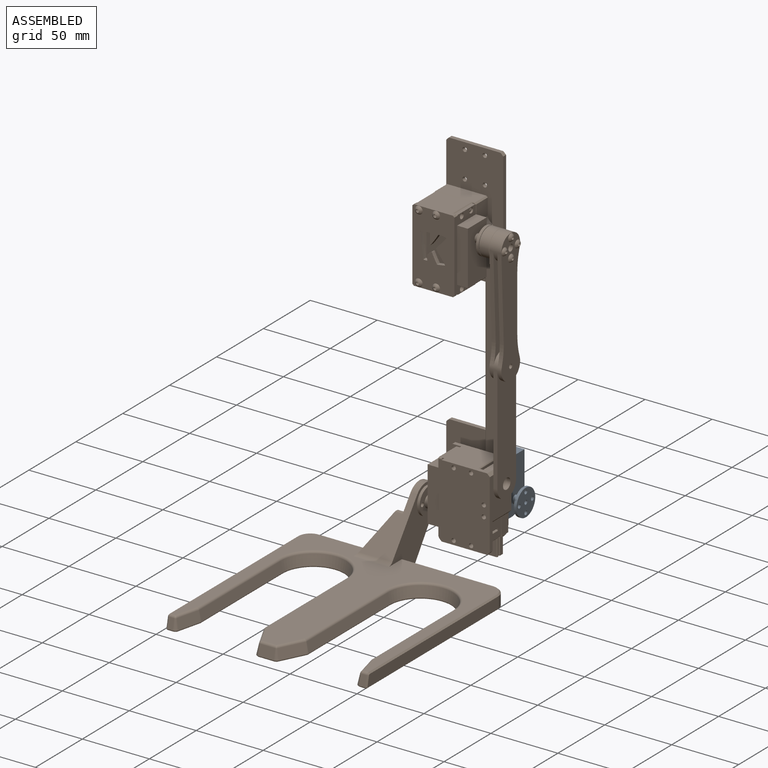
[diagram: assembled view]
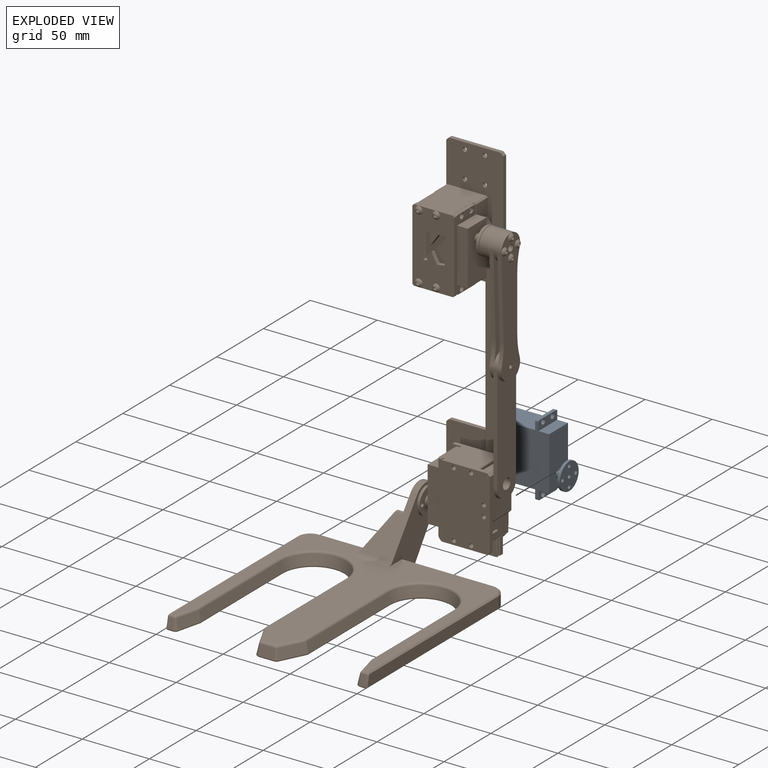
[diagram: exploded view]
FCSTD DOCUMENT  (FreeCAD 2024.113R14555 (Git shallow))
Label: acsenseur
License: Creative Commons Attribution-NoDerivatives
LicenseURL: http://creativecommons.org/licenses/by-nd/4.0/
objects: Sketcher::SketchObject×29, PartDesign::Chamfer×22, PartDesign::Pad×20, PartDesign::Body×17, PartDesign::Fillet×13, App::Part×10, TechDraw::DrawProjGroupItem×9, TechDraw::DrawProjGroup×9, Part::FeaturePython×8, App::Link×7, PartDesign::Pocket×6, Part::Feature×4, App::DocumentObjectGroup×3, TechDraw::DrawSVGTemplate×2, TechDraw::DrawPage×2, PartDesign::Hole×1, Spreadsheet::Sheet×1, Part::Part2DObjectPython×1, PartDesign::SubShapeBinder×1, PartDesign::Plane×1, +2 more types
note: 282 computed .brp shape members not serialized (recipe doc carries the construction recipe); baked Part::Feature solids carry a one-line shape summary decoded from their .brp
EXTERNAL_REF file=../table_2022.FCStd obj=Link005

FEATURE [Part::Feature] Solid  label="Slider"
  FixShape = 1
  InvalidShape = false
  TreeRank = 0
  ValidateShape = false
  shape: bbox 20 x 30.26 x 8.004 mm, 352 faces (baked)
FEATURE [App::Link] Link070  label="Link070(BlocServo90°)"
  AutoLinkLabel = true
  AutoPlacement = true
  LinkPlacement = pos=(-1.90735e-06,49,13.5) rot=(0,0,1;0rad)
  LinkedObject = -> Body039
  Placement = pos=(-1.90735e-06,49,13.5) rot=(0,0,1;0rad)
  SyncGroupVisibility = false
  TreeRank = 0
  _LinkVersion = 1
FEATURE [Sketcher::SketchObject] Sketch081
  ArcFitTolerance = 0
  AttachmentSupport = -> [XY_Plane046]
  ExternalBSplineMaxDegree = 0
  ExternalBSplineTolerance = 0
  FixShape = 1
  FullyConstrained = true
  InternalTolerance = 1e-06
  InvalidShape = false
  MakeInternals = false
  MapMode = 5
  Support = -> [XY_Plane046]
  TreeRank = 0
  ValidateShape = false
  sketch-geometry (29):
    g0: Circle CenterX=-7.5 CenterY=19.5 CenterZ=0 NormalX=0 NormalY=0 NormalZ=1 AngleXU=0 Radius=1.6
    g1: Circle CenterX=7.5 CenterY=19.5 CenterZ=0 NormalX=0 NormalY=0 NormalZ=1 AngleXU=0 Radius=1.6
    g2: Circle CenterX=7.5 CenterY=9.5 CenterZ=0 NormalX=0 NormalY=0 NormalZ=1 AngleXU=0 Radius=1.6
    g3: Circle CenterX=-7.5 CenterY=9.5 CenterZ=0 NormalX=0 NormalY=0 NormalZ=1 AngleXU=0 Radius=1.6
    g4: LineSegment [constr] StartX=-7.5 StartY=19.5 StartZ=0 EndX=7.5 EndY=19.5 EndZ=0
    g5: LineSegment [constr] StartX=7.5 StartY=19.5 StartZ=0 EndX=7.5 EndY=9.5 EndZ=0
    g6: LineSegment [constr] StartX=7.5 StartY=9.5 StartZ=0 EndX=-7.5 EndY=9.5 EndZ=0
    g7: LineSegment [constr] StartX=-7.5 StartY=9.5 StartZ=0 EndX=-7.5 EndY=19.5 EndZ=0
    g8: LineSegment StartX=10 StartY=55 StartZ=0 EndX=-25 EndY=55 EndZ=0
    g9: LineSegment [constr] StartX=-25 StartY=55 StartZ=0 EndX=-25 EndY=0 EndZ=0
    g10: LineSegment [constr] StartX=-25 StartY=0 StartZ=0 EndX=10 EndY=0 EndZ=0
    g11: LineSegment StartX=10 StartY=0 StartZ=0 EndX=10 EndY=55 EndZ=0
    g12: Circle CenterX=-7 CenterY=52 CenterZ=0 NormalX=0 NormalY=0 NormalZ=1 AngleXU=0 Radius=1.6
    g13: Circle CenterX=6 CenterY=52 CenterZ=0 NormalX=0 NormalY=0 NormalZ=1 AngleXU=0 Radius=1.6
    g14: Circle CenterX=-7 CenterY=3 CenterZ=0 NormalX=0 NormalY=0 NormalZ=1 AngleXU=0 Radius=1.6
    g15: Circle CenterX=6 CenterY=3 CenterZ=0 NormalX=0 NormalY=0 NormalZ=1 AngleXU=0 Radius=1.6
    g16: LineSegment [constr] StartX=-7 StartY=52 StartZ=0 EndX=6 EndY=52 EndZ=0
    g17: LineSegment [constr] StartX=6 StartY=52 StartZ=0 EndX=6 EndY=3 EndZ=0
    g18: LineSegment [constr] StartX=6 StartY=3 StartZ=0 EndX=-7 EndY=3 EndZ=0
    g19: LineSegment [constr] StartX=-7 StartY=3 StartZ=0 EndX=-7 EndY=52 EndZ=0
    g20: LineSegment [constr] StartX=-25 StartY=27.5 StartZ=0 EndX=10 EndY=27.5 EndZ=0
    g21: LineSegment [constr] StartX=-18 StartY=55 StartZ=0 EndX=-18 EndY=0 EndZ=0
    g22: LineSegment StartX=-25 StartY=55 StartZ=0 EndX=-25 EndY=17.4686 EndZ=0
    g23: LineSegment StartX=-25 StartY=17.4686 StartZ=0 EndX=-11 EndY=15 EndZ=0
    g24: LineSegment StartX=-11 StartY=15 StartZ=0 EndX=-11 EndY=0 EndZ=0
    g25: LineSegment StartX=-11 StartY=0 StartZ=0 EndX=10 EndY=0 EndZ=0
    g26: Circle [constr] CenterX=-13.75 CenterY=19.5 CenterZ=0 NormalX=0 NormalY=0 NormalZ=1 AngleXU=0 Radius=2.55
    g27: LineSegment [constr] StartX=-16.3 StartY=19.5 StartZ=0 EndX=-11.2 EndY=19.5 EndZ=0
    g28: Circle CenterX=-13.75 CenterY=19.5 CenterZ=0 NormalX=0 NormalY=0 NormalZ=1 AngleXU=0 Radius=1.6
  constraints (77):
    c: Coincident(g4,g5)
    c: Coincident(g5,g6)
    c: Coincident(g6,g7)
    c: Coincident(g7,g4)
    c: Horizontal(g6)
    c: Vertical(g5)
    c: Vertical(g7)
    c: Coincident(g4,g0)
    c: Coincident(g5,g2)
    c: Coincident(g1,g4)
    c: Coincident(g3,g6)
    c: Equal(g2,g1)
    c: Equal(g1,g0)
    c: Equal(g0,g3)
    c: Diameter(g1) = 3.2
    c: Symmetric(g1,g0,g-2)
    c: DistanceX(g4,g4) = 15
    c: DistanceY(g5,g5) = 10
    c: DistanceY(g2) = 9.5
    c: Coincident(g8,g9)
    c: Coincident(g9,g10)
    c: Coincident(g10,g11)
    c: Coincident(g11,g8)
    c: Horizontal(g8)
    c: Horizontal(g10)
    c: Vertical(g9)
    c: Vertical(g11)
    c: DistanceX(g10) = 10
    c: PointOnObject(g9,g-1)
    c: DistanceX(g10,g10) = 35
    c: DistanceY(g11,g11) = 55
    c: Equal(g15,g14)
    c: Equal(g14,g12)
    c: Equal(g12,g13)
    c: Coincident(g16,g17)
    c: Coincident(g17,g18)
    c: Coincident(g18,g19)
    c: Coincident(g19,g16)
    c: Horizontal(g16)
    c: Horizontal(g18)
    c: Vertical(g17)
    c: Vertical(g19)
    c: Coincident(g16,g12)
    c: Coincident(g17,g15)
    c: Coincident(g16,g13)
    c: Coincident(g18,g14)
    c: Diameter(g13) = 3.2
    c: DistanceY(g17,g17) = 49
    c: PointOnObject(g20,g11)
    c: Symmetric(g9,g8,g20)
    c: Symmetric(g14,g12,g20)
    c: DistanceX(g18,g18) = 13
    c: DistanceX(g15,g10) = 4
    c: PointOnObject(g21,g8)
    c: PointOnObject(g21,g10)
    c: Vertical(g21)
    c: DistanceX(g21,g8) = 28
    c: Coincident(g8,g22)
    c: PointOnObject(g22,g9)
    c: Coincident(g22,g23)
    c: Coincident(g23,g24)
    c: PointOnObject(g24,g10)
    c: Vertical(g24)
    c: Coincident(g25,g24)
    c: Coincident(g25,g11)
    c: DistanceX(g25,g25) = 21
    c: Angle(g23,g24) = 1.74533
    c: DistanceY(g24,g24) = 15
    c: PointOnObject(g27,g26)
    c: PointOnObject(g27,g26)
    c: Horizontal(g27)
    c: PointOnObject(g26,g27)
    c: DistanceX(g27) = -11.2
    c: Diameter(g26) = 5.1
    c: Coincident(g28,g26)
    c: Diameter(g28) = 3.2
    c: Horizontal(g28,g0)
FEATURE [PartDesign::Pad] Pad046
  AddSubType = 0
  AutoTaperInnerAngle = false
  CheckUpToFaceLimits = true
  ClaimChildren = false
  Direction = (1,1,1)
  Fit = 0
  FitJoin = 0
  FixShape = 1
  InnerFit = 0
  InnerFitJoin = 0
  InvalidShape = false
  Length = 3
  Length2 = 100
  Linearize = true
  NewSolid = false
  Profile = -> Sketch081
  Refine = true
  Suppress = false
  TaperInnerAngle = 0
  TaperInnerAngleRev = 0
  TreeRank = 0
  Type = 0
  ValidateShape = true
  _ProfileBasedVersion = 1
FEATURE [PartDesign::Chamfer] Chamfer026
  AddSubType = 0
  Angle = 45
  Base = -> Pad046 [Edge14,Edge1,Edge2]
  BaseFeature = -> Pad046
  ChamferType = 0
  FixShape = 1
  FlipDirection = false
  InvalidShape = false
  NewSolid = false
  Refine = true
  Size = 1
  Size2 = 1
  SupportTransform = false
  Suppress = false
  TreeRank = 0
  UseAllEdges = false
  ValidateShape = true
FEATURE [PartDesign::Fillet] Fillet021
  AddSubType = 0
  Base = -> Chamfer026 [Edge42,Edge44,Edge45]
  BaseFeature = -> Chamfer026
  FixShape = 1
  InvalidShape = false
  NewSolid = false
  Radius = 3
  Refine = true
  SupportTransform = false
  Suppress = false
  TreeRank = 0
  UseAllEdges = false
  ValidateShape = true
FEATURE [PartDesign::Body] Body038  label="PlatineSlider"
  AutoGroupSolids = false
  ClaimAllChildren = false
  ExportMode = 0
  FixShape = 1
  Group = -> [Sketch081,Pad046,Chamfer026,Fillet021]
  InvalidShape = false
  Origin = -> Origin058
  Placement = pos=(-1.90735e-06,-1.52588e-05,10.5) rot=(0,0,1;0rad)
  SingleSolid = true
  Tip = -> Fillet021
  TreeRank = 0
  ValidateShape = false
  _ExportChildren = -> [Pad046,Chamfer026,Fillet021]
  _GroupVersion = 1
FEATURE [Sketcher::SketchObject] Sketch082
  ArcFitTolerance = 0
  AttachmentSupport = -> [XY_Plane047]
  ExternalBSplineMaxDegree = 0
  ExternalBSplineTolerance = 0
  FixShape = 1
  FullyConstrained = true
  InternalTolerance = 1e-06
  InvalidShape = false
  MakeInternals = false
  MapMode = 5
  Support = -> [XY_Plane047]
  TreeRank = 0
  ValidateShape = false
  sketch-geometry (6):
    g0: LineSegment StartX=10 StartY=0 StartZ=0 EndX=-18 EndY=0 EndZ=0
    g1: LineSegment StartX=-18 StartY=0 StartZ=0 EndX=-18 EndY=6 EndZ=0
    g2: LineSegment StartX=-18 StartY=6 StartZ=0 EndX=10 EndY=6 EndZ=0
    g3: LineSegment StartX=10 StartY=6 StartZ=0 EndX=10 EndY=0 EndZ=0
    g4: Circle CenterX=-7 CenterY=3 CenterZ=0 NormalX=0 NormalY=0 NormalZ=1 AngleXU=0 Radius=2.05
    g5: Circle CenterX=6 CenterY=3 CenterZ=0 NormalX=0 NormalY=0 NormalZ=1 AngleXU=0 Radius=2.05
  constraints (18):
    c: Coincident(g0,g1)
    c: Coincident(g1,g2)
    c: Coincident(g2,g3)
    c: Coincident(g3,g0)
    c: Horizontal(g0)
    c: Horizontal(g2)
    c: Vertical(g1)
    c: Vertical(g3)
    c: PointOnObject(g0,g-1)
    c: Diameter(g4) = 4.1
    c: Equal(g4,g5)
    c: Horizontal(g4,g5)
    c: DistanceY(g4) = 3
    c: DistanceX(g4) = -7
    c: DistanceX(g5) = 6
    c: DistanceX(g2) = 10
    c: DistanceX(g0,g0) = 28
    c: DistanceY(g4,g1) = 3
FEATURE [PartDesign::Pad] Pad047
  AddSubType = 0
  AutoTaperInnerAngle = false
  CheckUpToFaceLimits = true
  ClaimChildren = false
  Direction = (1,1,1)
  Fit = 0
  FitJoin = 0
  FixShape = 1
  InnerFit = 0
  InnerFitJoin = 0
  InvalidShape = false
  Length = 20
  Length2 = 100
  Linearize = true
  NewSolid = false
  Profile = -> Sketch082
  Refine = true
  Suppress = false
  TaperInnerAngle = 0
  TaperInnerAngleRev = 0
  TreeRank = 0
  Type = 0
  ValidateShape = true
  _ProfileBasedVersion = 1
FEATURE [Sketcher::SketchObject] Sketch083
  ArcFitTolerance = 0
  AttachmentSupport = -> [Pad047]
  ExternalBSplineMaxDegree = 0
  ExternalBSplineTolerance = 0
  FixShape = 1
  FullyConstrained = true
  InternalTolerance = 1e-06
  InvalidShape = false
  MakeInternals = false
  MapMode = 5
  Placement = pos=(-18,0,0) rot=(0.57735,-0.57735,-0.57735;2.0944rad)
  Support = -> [Pad047]
  TreeRank = 0
  ValidateShape = false
  sketch-geometry (1):
    g0: Circle CenterX=-3 CenterY=15 CenterZ=0 NormalX=0 NormalY=0 NormalZ=1 AngleXU=0 Radius=2.05
  constraints (3):
    c: DistanceX(g0) = -3
    c: Diameter(g0) = 4.1
    c: DistanceY(g0) = 15
FEATURE [PartDesign::Pocket] Pocket032
  AddSubType = 1
  AutoTaperInnerAngle = false
  BaseFeature = -> Pad047
  CheckUpToFaceLimits = true
  ClaimChildren = false
  Direction = (1,1,1)
  Fit = 0
  FitJoin = 0
  FixShape = 1
  InnerFit = 0
  InnerFitJoin = 0
  InvalidShape = false
  Length = 7
  Length2 = 100
  Linearize = true
  NewSolid = false
  Profile = -> Sketch083
  Refine = true
  Suppress = false
  TaperInnerAngle = 0
  TaperInnerAngleRev = 0
  TreeRank = 0
  Type = 0
  ValidateShape = true
  _ProfileBasedVersion = 1
  _Version = 1
FEATURE [Sketcher::SketchObject] Sketch084
  ArcFitTolerance = 0
  AttachmentSupport = -> [Pocket032]
  ExternalBSplineMaxDegree = 0
  ExternalBSplineTolerance = 0
  ExternalGeometry = -> [Pocket032]
  FixShape = 1
  FullyConstrained = true
  InternalTolerance = 1e-06
  InvalidShape = false
  MakeInternals = false
  MapMode = 5
  Placement = pos=(-18,0,0) rot=(0.57735,-0.57735,-0.57735;2.0944rad)
  Support = -> [Pocket032]
  TreeRank = 0
  ValidateShape = false
  sketch-geometry (1):
    g0: Circle CenterX=-3 CenterY=5 CenterZ=0 NormalX=0 NormalY=0 NormalZ=1 AngleXU=0 Radius=2
  constraints (3):
    c: Vertical(g0,g-3)
    c: DistanceY(g0,g-3) = 10
    c: Diameter(g0) = 4
FEATURE [PartDesign::Pad] Pad048
  AddSubType = 0
  AutoTaperInnerAngle = false
  BaseFeature = -> Pocket032
  CheckUpToFaceLimits = true
  ClaimChildren = false
  Direction = (1,1,1)
  Fit = 0
  FitJoin = 0
  FixShape = 1
  InnerFit = 0
  InnerFitJoin = 0
  InvalidShape = false
  Length = 2
  Length2 = 100
  Linearize = true
  NewSolid = false
  Profile = -> Sketch084
  Refine = true
  Suppress = false
  TaperInnerAngle = 0
  TaperInnerAngleRev = 0
  TreeRank = 0
  Type = 0
  ValidateShape = true
  _ProfileBasedVersion = 1
FEATURE [PartDesign::Fillet] Fillet022
  AddSubType = 0
  Base = -> Pad048 [Edge22]
  BaseFeature = -> Pad048
  FixShape = 1
  InvalidShape = false
  NewSolid = false
  Radius = 1.99
  Refine = true
  SupportTransform = false
  Suppress = false
  TreeRank = 0
  UseAllEdges = false
  ValidateShape = true
FEATURE [PartDesign::Chamfer] Chamfer027
  AddSubType = 0
  Angle = 45
  Base = -> Fillet022 [Edge11,Edge22,Edge6,Edge9]
  BaseFeature = -> Fillet022
  ChamferType = 0
  FixShape = 1
  FlipDirection = false
  InvalidShape = false
  NewSolid = false
  Refine = true
  Size = 0.6
  Size2 = 1
  SupportTransform = false
  Suppress = false
  TreeRank = 0
  UseAllEdges = false
  ValidateShape = true
FEATURE [PartDesign::Chamfer] Chamfer028
  AddSubType = 0
  Angle = 45
  Base = -> Chamfer027 [Edge26,Edge25,Edge15,Edge14,Edge5]
  BaseFeature = -> Chamfer027
  ChamferType = 0
  FixShape = 1
  FlipDirection = false
  InvalidShape = false
  NewSolid = false
  Refine = true
  Size = 0.2
  Size2 = 1
  SupportTransform = false
  Suppress = false
  TreeRank = 0
  UseAllEdges = false
  ValidateShape = true
FEATURE [PartDesign::Body] Body039  label="BlocServo90°"
  AutoGroupSolids = false
  ClaimAllChildren = false
  ExportMode = 0
  FixShape = 1
  Group = -> [Sketch082,Pad047,Sketch083,Pocket032,Sketch084,Pad048,Fillet022,Chamfer027,Chamfer028]
  InvalidShape = false
  Origin = -> Origin059
  Placement = pos=(-1.90735e-06,0,13.5) rot=(0,0,1;0rad)
  SingleSolid = true
  Tip = -> Chamfer028
  TreeRank = 0
  ValidateShape = false
  _ExportChildren = -> [Pad047,Pocket032,Pad048,Fillet022,Chamfer027,Chamfer028]
  _GroupVersion = 1
FEATURE [Sketcher::SketchObject] Sketch085
  ArcFitTolerance = 0
  AttachmentSupport = -> [XY_Plane048]
  ExternalBSplineMaxDegree = 0
  ExternalBSplineTolerance = 0
  FixShape = 1
  FullyConstrained = true
  InternalTolerance = 1e-06
  InvalidShape = false
  MakeInternals = false
  MapMode = 5
  Support = -> [XY_Plane048]
  TreeRank = 0
  ValidateShape = false
  sketch-geometry (13):
    g0: LineSegment StartX=-10 StartY=0 StartZ=0 EndX=10 EndY=0 EndZ=0
    g1: LineSegment StartX=10 StartY=0 StartZ=0 EndX=10 EndY=29 EndZ=0
    g2: LineSegment StartX=10 StartY=29 StartZ=0 EndX=-10 EndY=29 EndZ=0
    g3: LineSegment StartX=-10 StartY=29 StartZ=0 EndX=-10 EndY=0 EndZ=0
    g4: Circle CenterX=7.5 CenterY=19.5 CenterZ=0 NormalX=0 NormalY=0 NormalZ=1 AngleXU=0 Radius=1.5
    g5: Circle CenterX=-7.5 CenterY=19.5 CenterZ=0 NormalX=0 NormalY=0 NormalZ=1 AngleXU=0 Radius=1.5
    g6: Circle CenterX=-7.5 CenterY=9.5 CenterZ=0 NormalX=0 NormalY=0 NormalZ=1 AngleXU=0 Radius=1.5
    g7: Circle CenterX=7.5 CenterY=9.5 CenterZ=0 NormalX=0 NormalY=0 NormalZ=1 AngleXU=0 Radius=1.5
    g8: LineSegment [constr] StartX=-7.5 StartY=19.5 StartZ=0 EndX=7.5 EndY=19.5 EndZ=0
    g9: LineSegment [constr] StartX=7.5 StartY=19.5 StartZ=0 EndX=7.5 EndY=9.5 EndZ=0
    g10: LineSegment [constr] StartX=7.5 StartY=9.5 StartZ=0 EndX=-7.5 EndY=9.5 EndZ=0
    g11: LineSegment [constr] StartX=-7.5 StartY=9.5 StartZ=0 EndX=-7.5 EndY=19.5 EndZ=0
    g12: LineSegment [constr] StartX=-10 StartY=14.5 StartZ=0 EndX=10 EndY=14.5 EndZ=0
  constraints (32):
    c: Coincident(g0,g1)
    c: Coincident(g1,g2)
    c: Coincident(g2,g3)
    c: Coincident(g3,g0)
    c: Horizontal(g0)
    c: Horizontal(g2)
    c: Vertical(g1)
    c: Vertical(g3)
    c: Symmetric(g0,g0,g-1)
    c: DistanceY(g1,g1) = 29
    c: DistanceX(g2,g2) = 20
    c: Coincident(g8,g9)
    c: Coincident(g9,g10)
    c: Coincident(g10,g11)
    c: Coincident(g11,g8)
    c: Horizontal(g10)
    c: Vertical(g9)
    c: Vertical(g11)
    c: Coincident(g8,g5)
    c: Coincident(g9,g7)
    c: Coincident(g4,g8)
    c: Coincident(g6,g10)
    c: DistanceX(g8,g8) = 15
    c: DistanceY(g9,g9) = 10
    c: PointOnObject(g12,g3)
    c: Symmetric(g0,g1,g12)
    c: Symmetric(g7,g4,g12)
    c: Symmetric(g4,g5,g-2)
    c: Diameter(g4) = 3
    c: Equal(g4,g7)
    c: Equal(g4,g6)
    c: Equal(g4,g5)
FEATURE [PartDesign::Pad] Pad049
  AddSubType = 0
  AutoTaperInnerAngle = false
  CheckUpToFaceLimits = true
  ClaimChildren = false
  Direction = (1,1,1)
  Fit = 0
  FitJoin = 0
  FixShape = 1
  InnerFit = 0
  InnerFitJoin = 0
  InvalidShape = false
  Length = 0.5
  Length2 = 100
  Linearize = true
  NewSolid = false
  Profile = -> Sketch085
  Refine = true
  Suppress = false
  TaperInnerAngle = 0
  TaperInnerAngleRev = 0
  TreeRank = 0
  Type = 0
  ValidateShape = true
  _ProfileBasedVersion = 1
FEATURE [PartDesign::Fillet] Fillet023
  AddSubType = 0
  Base = -> Pad049 [Edge8,Edge1,Edge2,Edge5]
  BaseFeature = -> Pad049
  FixShape = 1
  InvalidShape = false
  NewSolid = false
  Radius = 2
  Refine = true
  SupportTransform = false
  Suppress = false
  TreeRank = 0
  UseAllEdges = false
  ValidateShape = true
FEATURE [PartDesign::Body] Body040  label="InterPlaque5"
  AutoGroupSolids = false
  ClaimAllChildren = false
  ExportMode = 0
  FixShape = 1
  Group = -> [Sketch085,Pad049,Fillet023]
  InvalidShape = false
  Origin = -> Origin060
  Placement = pos=(0,-7.62939e-06,10) rot=(0,0,1;0rad)
  SingleSolid = true
  Tip = -> Fillet023
  TreeRank = 0
  ValidateShape = false
  _ExportChildren = -> [Pad049,Fillet023]
  _GroupVersion = 1
FEATURE [Sketcher::SketchObject] Sketch145
  ArcFitTolerance = 0
  AttachmentSupport = -> [XY_Plane082]
  ExternalBSplineMaxDegree = 0
  ExternalBSplineTolerance = 0
  FixShape = 1
  FullyConstrained = true
  InternalTolerance = 1e-06
  InvalidShape = false
  MakeInternals = false
  MapMode = 5
  Support = -> [XY_Plane082]
  TreeRank = 0
  ValidateShape = false
  sketch-geometry (26):
    g0: LineSegment StartX=-18 StartY=55 StartZ=0 EndX=20 EndY=55 EndZ=0
    g1: LineSegment StartX=20 StartY=55 StartZ=0 EndX=20 EndY=-10 EndZ=0
    g2: LineSegment StartX=20 StartY=-10 StartZ=0 EndX=10 EndY=-10 EndZ=0
    g3: LineSegment StartX=-18 StartY=-10 StartZ=0 EndX=-18 EndY=55 EndZ=0
    g4: Circle CenterX=15.5 CenterY=25 CenterZ=0 NormalX=0 NormalY=0 NormalZ=1 AngleXU=0 Radius=1.6
    g5: Circle CenterX=15.5 CenterY=33 CenterZ=0 NormalX=0 NormalY=0 NormalZ=1 AngleXU=0 Radius=1.6
    g6: Circle CenterX=6 CenterY=52 CenterZ=0 NormalX=0 NormalY=0 NormalZ=1 AngleXU=0 Radius=1.6
    g7: Circle CenterX=-7 CenterY=52 CenterZ=0 NormalX=0 NormalY=0 NormalZ=1 AngleXU=0 Radius=1.6
    g8: Circle CenterX=-7 CenterY=2.99998 CenterZ=0 NormalX=0 NormalY=0 NormalZ=1 AngleXU=0 Radius=1.6
    g9: Circle CenterX=6 CenterY=2.99998 CenterZ=0 NormalX=0 NormalY=0 NormalZ=1 AngleXU=0 Radius=1.6
    g10: ArcOfCircle CenterX=-13 CenterY=-10 CenterZ=0 NormalX=0 NormalY=0 NormalZ=1 AngleXU=0 Radius=1 StartAngle=1.5708 EndAngle=3.14159
    g11: ArcOfCircle CenterX=-9 CenterY=-10 CenterZ=0 NormalX=0 NormalY=0 NormalZ=1 AngleXU=0 Radius=1 StartAngle=0 EndAngle=1.5708
    g12: LineSegment StartX=-13 StartY=-9 StartZ=0 EndX=-9 EndY=-9 EndZ=0
    g13: ArcOfCircle CenterX=5 CenterY=-10 CenterZ=0 NormalX=0 NormalY=0 NormalZ=1 AngleXU=0 Radius=1 StartAngle=1.5708 EndAngle=3.14159
    g14: ArcOfCircle CenterX=9 CenterY=-10 CenterZ=0 NormalX=0 NormalY=0 NormalZ=1 AngleXU=0 Radius=1 StartAngle=3.295e-13 EndAngle=1.5708
    g15: LineSegment StartX=5 StartY=-9 StartZ=0 EndX=9 EndY=-9 EndZ=0
    g16: ArcOfCircle CenterX=-13 CenterY=-3 CenterZ=0 NormalX=0 NormalY=0 NormalZ=1 AngleXU=0 Radius=1 StartAngle=1.5708 EndAngle=4.71239
    g17: ArcOfCircle CenterX=-9 CenterY=-3 CenterZ=0 NormalX=0 NormalY=0 NormalZ=1 AngleXU=0 Radius=1 StartAngle=4.71239 EndAngle=7.85398
    g18: LineSegment StartX=-13 StartY=-4 StartZ=0 EndX=-9 EndY=-4 EndZ=0
    g19: LineSegment StartX=-13 StartY=-2 StartZ=0 EndX=-9 EndY=-2 EndZ=0
    g20: ArcOfCircle CenterX=5 CenterY=-3 CenterZ=0 NormalX=0 NormalY=0 NormalZ=1 AngleXU=0 Radius=1 StartAngle=1.5708 EndAngle=4.71239
    g21: ArcOfCircle CenterX=9 CenterY=-3 CenterZ=0 NormalX=0 NormalY=0 NormalZ=1 AngleXU=0 Radius=1 StartAngle=4.71239 EndAngle=7.85398
    g22: LineSegment StartX=5 StartY=-4 StartZ=0 EndX=9 EndY=-4 EndZ=0
    g23: LineSegment StartX=5 StartY=-2 StartZ=0 EndX=9 EndY=-2 EndZ=0
    g24: LineSegment StartX=-14 StartY=-10 StartZ=0 EndX=-18 EndY=-10 EndZ=0
    g25: LineSegment StartX=4 StartY=-10 StartZ=0 EndX=-8 EndY=-10 EndZ=0
  constraints (68):
    c: Coincident(g0,g1)
    c: Coincident(g1,g2)
    c: Coincident(g24,g3)
    c: Coincident(g3,g0)
    c: Horizontal(g0)
    c: Horizontal(g2)
    c: Vertical(g1)
    c: Vertical(g3)
    c: DistanceY(g24) = -10
    c: DistanceX(g24) = -18
    c: DistanceY(g0) = 55
    c: DistanceX(g0) = 20
    c: Vertical(g5,g4)
    c: DistanceY(g4,g5) = 8
    c: Diameter(g5) = 3.2
    c: Equal(g5,g4)
    c: DistanceX(g5,g0) = 4.5
    c: DistanceY(g4,g0) = 30
    c: Diameter(g9) = 3.2
    c: Equal(g9,g8)
    c: Equal(g9,g7)
    c: Equal(g9,g6)
    c: Tangent(g10,g12) = 1.5708
    c: Tangent(g12,g11) = 1.5708
    c: Equal(g10,g11)
    c: PointOnObject(g10,g2)
    c: Tangent(g13,g15) = 1.5708
    c: Tangent(g15,g14) = 1.5708
    c: Equal(g13,g14)
    c: PointOnObject(g13,g2)
    c: Tangent(g16,g19) = 1.5708
    c: Tangent(g16,g18) = -1.5708
    c: Tangent(g18,g17) = -1.5708
    c: Tangent(g19,g17) = 1.5708
    c: Horizontal(g18)
    c: Equal(g16,g17)
    c: Tangent(g20,g23) = 1.5708
    c: Tangent(g20,g22) = -1.5708
    c: Tangent(g22,g21) = -1.5708
    c: Tangent(g23,g21) = 1.5708
    c: Horizontal(g22)
    c: Equal(g20,g21)
    c: Equal(g12,g18)
    c: Equal(g18,g22)
    c: Equal(g22,g15)
    c: Equal(g17,g11)
    c: Equal(g11,g20)
    c: Equal(g20,g13)
    c: Vertical(g20,g13)
    c: Vertical(g17,g11)
    c: Horizontal(g17,g20)
    c: DistanceY(g11,g17) = 5
    c: Diameter(g16) = 2
    c: DistanceX(g19,g19) = 4
    c: DistanceX(g-1,g21) = 9
    c: DistanceX(g24,g10) = 5
    c: Tangent(g2,g24)
    c: Tangent(g2,g25)
    c: Coincident(g10,g24)
    c: Coincident(g11,g25)
    c: Coincident(g13,g25)
    c: Coincident(g14,g2)
    c: Horizontal(g12)
    c: Horizontal(g15)
    c: Block(g6)
    c: Block(g7)
    c: Block(g9)
    c: Block(g8)
FEATURE [PartDesign::Pad] Pad079
  AddSubType = 0
  AutoTaperInnerAngle = false
  CheckUpToFaceLimits = true
  ClaimChildren = false
  Direction = (1,1,1)
  Fit = 0
  FitJoin = 0
  FixShape = 1
  InnerFit = 0
  InnerFitJoin = 0
  InvalidShape = false
  Length = 3
  Length2 = 100
  Linearize = true
  NewSolid = false
  Profile = -> Sketch145
  Refine = true
  Suppress = false
  TaperInnerAngle = 0
  TaperInnerAngleRev = 0
  TreeRank = 0
  Type = 0
  ValidateShape = true
  _ProfileBasedVersion = 1
FEATURE [PartDesign::Chamfer] Chamfer051
  AddSubType = 0
  Angle = 45
  Base = -> Pad079 [Edge8,Edge11,Edge14,Edge5]
  BaseFeature = -> Pad079
  ChamferType = 0
  FixShape = 1
  FlipDirection = false
  InvalidShape = false
  NewSolid = false
  Refine = true
  Size = 2
  Size2 = 1
  SupportTransform = false
  Suppress = false
  TreeRank = 0
  UseAllEdges = false
  ValidateShape = true
FEATURE [PartDesign::Fillet] Fillet047
  AddSubType = 0
  Base = -> Chamfer051 [Edge3,Edge68,Edge70,Edge76]
  BaseFeature = -> Chamfer051
  FixShape = 1
  InvalidShape = false
  NewSolid = false
  Radius = 2
  Refine = true
  SupportTransform = false
  Suppress = false
  TreeRank = 0
  UseAllEdges = false
  ValidateShape = true
FEATURE [Sketcher::SketchObject] Sketch147
  ArcFitTolerance = 0
  AttachmentSupport = -> [YZ_Plane088]
  ExternalBSplineMaxDegree = 0
  ExternalBSplineTolerance = 0
  FixShape = 1
  FullyConstrained = true
  InternalTolerance = 1e-06
  InvalidShape = false
  MakeInternals = false
  MapMode = 5
  Placement = pos=(0,0,0) rot=(0.57735,0.57735,0.57735;2.0944rad)
  Support = -> [YZ_Plane088]
  TreeRank = 19
  ValidateShape = false
  sketch-geometry (7):
    g0: Circle CenterX=-1.3e-15 CenterY=5e-16 CenterZ=0 NormalX=0 NormalY=0 NormalZ=1 AngleXU=0 Radius=10
    g1: Circle CenterX=0 CenterY=7 CenterZ=0 NormalX=0 NormalY=0 NormalZ=1 AngleXU=0 Radius=1.6
    g2: Circle CenterX=0 CenterY=-7 CenterZ=0 NormalX=0 NormalY=0 NormalZ=1 AngleXU=0 Radius=1.6
    g3: Circle CenterX=7 CenterY=0 CenterZ=0 NormalX=0 NormalY=0 NormalZ=1 AngleXU=0 Radius=1.6
    g4: Circle CenterX=-7 CenterY=0 CenterZ=0 NormalX=0 NormalY=0 NormalZ=1 AngleXU=0 Radius=1.6
    g5: Circle [constr] CenterX=-1.3e-15 CenterY=5e-16 CenterZ=0 NormalX=0 NormalY=0 NormalZ=1 AngleXU=0 Radius=7
    g6: Circle CenterX=-1.3e-15 CenterY=5e-16 CenterZ=0 NormalX=0 NormalY=0 NormalZ=1 AngleXU=0 Radius=4
  constraints (18):
    c: Coincident(g0,g-1)
    c: PointOnObject(g1,g-2)
    c: PointOnObject(g2,g-2)
    c: PointOnObject(g3,g-1)
    c: PointOnObject(g4,g-1)
    c: Coincident(g5,g0)
    c: PointOnObject(g1,g5)
    c: PointOnObject(g3,g5)
    c: PointOnObject(g4,g5)
    c: PointOnObject(g2,g5)
    c: Equal(g1,g3)
    c: Equal(g3,g4)
    c: Equal(g4,g2)
    c: Diameter(g1) = 3.2
    c: Diameter(g5) = 14
    c: Diameter(g0) = 20
    c: Coincident(g6,g0)
    c: Diameter(g6) = 8
FEATURE [PartDesign::Pad] Pad081
  AddSubType = 0
  AlongSketchNormal = false
  AutoTaperInnerAngle = false
  CheckUpToFaceLimits = true
  ClaimChildren = false
  Direction = (1,-2e-16,3e-16)
  Fit = 0
  FitJoin = 0
  FixShape = 1
  InnerFit = 0
  InnerFitJoin = 0
  InvalidShape = false
  Length = 8
  Length2 = 100
  Linearize = true
  NewSolid = false
  Placement = pos=(0,0,0) rot=(0.57735,0.57735,0.57735;2.0944rad)
  Profile = -> Sketch147
  Refine = true
  Suppress = false
  TaperInnerAngle = 0
  TaperInnerAngleRev = 0
  TreeRank = 20
  Type = 0
  ValidateShape = true
  _ProfileBasedVersion = 1
FEATURE [PartDesign::Chamfer] Chamfer052
  AddSubType = 0
  Angle = 45
  Base = -> Pad081 [Edge3,Edge6,Edge5,Edge2,Edge17,Edge11,Edge14,Edge8,Edge18,Edge9,Edge12,Edge15]
  BaseFeature = -> Pad081
  ChamferType = 0
  FixShape = 1
  FlipDirection = false
  InvalidShape = false
  NewSolid = false
  Placement = pos=(0,0,0) rot=(0.57735,0.57735,0.57735;2.0944rad)
  Refine = true
  Size = 0.4
  Size2 = 1
  SupportTransform = false
  Suppress = false
  TreeRank = 21
  UseAllEdges = false
  ValidateShape = true
FEATURE [PartDesign::Body] Body069  label="SpacerArm"
  AutoGroupSolids = false
  ClaimAllChildren = false
  ExportMode = 0
  FixShape = 1
  Group = -> [Sketch147,Pad081,Chamfer052]
  InvalidShape = false
  Origin = -> Origin108
  SingleSolid = true
  Tip = -> Chamfer052
  TreeRank = 18
  ValidateShape = false
  _ExportChildren = -> [Pad081,Chamfer052]
  _GroupVersion = 1
FEATURE [App::Link] Link108  label="Link108(BlocServo90°)"
  AutoLinkLabel = true
  AutoPlacement = true
  LinkPlacement = pos=(-1.90735e-06,7.1e-15,13.5) rot=(0,0,1;0rad)
  LinkedObject = -> Body039
  Placement = pos=(-1.90735e-06,7.1e-15,13.5) rot=(0,0,1;0rad)
  SyncGroupVisibility = false
  TreeRank = 24
  _LinkVersion = 1
FEATURE [App::Link] Link109  label="Link109(BlocServo90°)"
  AutoLinkLabel = true
  AutoPlacement = true
  LinkPlacement = pos=(-10.5,-3.00001,211.5) rot=(0,0.707107,-0.707107;3.14159rad)
  LinkedObject = -> Body039
  Placement = pos=(-10.5,-3.00001,211.5) rot=(0,0.707107,-0.707107;3.14159rad)
  SyncGroupVisibility = false
  TreeRank = 25
  _LinkVersion = 1
FEATURE [App::Link] Link110  label="Link110(BlocServo90°)"
  AutoLinkLabel = true
  AutoPlacement = true
  LinkPlacement = pos=(-10.5,-3.00002,260.5) rot=(0,0.707107,-0.707107;3.14159rad)
  LinkedObject = -> Body039
  Placement = pos=(-10.5,-3.00002,260.5) rot=(0,0.707107,-0.707107;3.14159rad)
  SyncGroupVisibility = false
  TreeRank = 26
  _LinkVersion = 1
FEATURE [Sketcher::SketchObject] Sketch148
  ArcFitTolerance = 0
  AttachmentSupport = -> [XZ_Plane089]
  ExternalBSplineMaxDegree = 0
  ExternalBSplineTolerance = 0
  FixShape = 1
  FullyConstrained = true
  InternalTolerance = 1e-06
  InvalidShape = false
  MakeInternals = false
  MapMode = 5
  Placement = pos=(0,0,0) rot=(1,0,0;1.5708rad)
  Support = -> [XZ_Plane089]
  TreeRank = 40
  ValidateShape = false
  sketch-geometry (15):
    g0: Circle CenterX=-7.5 CenterY=25 CenterZ=0 NormalX=0 NormalY=0 NormalZ=1 AngleXU=0 Radius=1.6
    g1: Circle CenterX=7.5 CenterY=25 CenterZ=0 NormalX=0 NormalY=0 NormalZ=1 AngleXU=0 Radius=1.6
    g2: Circle CenterX=-7.5 CenterY=5 CenterZ=0 NormalX=0 NormalY=0 NormalZ=1 AngleXU=0 Radius=1.6
    g3: Circle CenterX=7.5 CenterY=5 CenterZ=0 NormalX=0 NormalY=0 NormalZ=1 AngleXU=0 Radius=1.6
    g4: LineSegment [constr] StartX=-7.5 StartY=25 StartZ=0 EndX=7.5 EndY=25 EndZ=0
    g5: LineSegment [constr] StartX=7.5 StartY=25 StartZ=0 EndX=7.5 EndY=5 EndZ=0
    g6: LineSegment [constr] StartX=7.5 StartY=5 StartZ=0 EndX=-7.5 EndY=5 EndZ=0
    g7: LineSegment [constr] StartX=-7.5 StartY=5 StartZ=0 EndX=-7.5 EndY=25 EndZ=0
    g8: LineSegment StartX=-21.3 StartY=70 StartZ=0 EndX=21.3 EndY=70 EndZ=0
    g9: LineSegment StartX=21.3 StartY=70 StartZ=0 EndX=21.3 EndY=3.2259e-12 EndZ=0
    g10: LineSegment StartX=21.3 StartY=3.2293e-12 StartZ=0 EndX=-21.3 EndY=3.2293e-12 EndZ=0
    g11: LineSegment StartX=-21.3 StartY=3.2293e-12 StartZ=0 EndX=-21.3 EndY=70 EndZ=0
    g12: Circle CenterX=16.8 CenterY=20 CenterZ=0 NormalX=0 NormalY=0 NormalZ=1 AngleXU=0 Radius=1.6
    g13: Circle CenterX=16.8 CenterY=40 CenterZ=0 NormalX=0 NormalY=0 NormalZ=1 AngleXU=0 Radius=1.6
    g14: Circle CenterX=16.8 CenterY=60 CenterZ=0 NormalX=0 NormalY=0 NormalZ=1 AngleXU=0 Radius=1.6
  constraints (39):
    c: Coincident(g4,g5)
    c: Coincident(g5,g6)
    c: Coincident(g6,g7)
    c: Coincident(g7,g4)
    c: Horizontal(g6)
    c: Vertical(g5)
    c: Vertical(g7)
    c: Coincident(g4,g0)
    c: Coincident(g3,g5)
    c: Coincident(g1,g4)
    c: Coincident(g2,g6)
    c: Symmetric(g0,g1,g-2)
    c: DistanceX(g4,g4) = 15
    c: DistanceY(g5,g5) = 20
    c: DistanceY(g3) = 5
    c: Equal(g1,g0)
    c: Equal(g1,g2)
    c: Equal(g1,g3)
    c: Diameter(g1) = 3.2
    c: Coincident(g8,g9)
    c: Coincident(g9,g10)
    c: Coincident(g10,g11)
    c: Coincident(g11,g8)
    c: Horizontal(g8)
    c: Horizontal(g10)
    c: Vertical(g9)
    c: Vertical(g11)
    c: Symmetric(g9,g10,g-1)
    c: DistanceY(g11,g11) = 70
    c: DistanceY(g12,g13) = 20
    c: Equal(g13,g12)
    c: Vertical(g12,g13)
    c: Diameter(g13) = 3.2
    c: DistanceX(g12,g9) = 4.5
    c: DistanceY(g9,g12) = 20
    c: Vertical(g14,g13)
    c: Equal(g14,g13)
    c: DistanceY(g13,g14) = 20
    c: DistanceX(g-1,g9) = 21.3
FEATURE [PartDesign::Pad] Pad082
  AddSubType = 0
  AlongSketchNormal = false
  AutoTaperInnerAngle = false
  CheckUpToFaceLimits = true
  ClaimChildren = false
  Direction = (0,-1,-2e-16)
  Fit = 0
  FitJoin = 0
  FixShape = 1
  InnerFit = 0
  InnerFitJoin = 0
  InvalidShape = false
  Length = 3
  Length2 = 100
  Linearize = true
  NewSolid = false
  Profile = -> Sketch148
  Refine = true
  Suppress = false
  TaperInnerAngle = 0
  TaperInnerAngleRev = 0
  TreeRank = 42
  Type = 0
  ValidateShape = true
  _ProfileBasedVersion = 1
FEATURE [PartDesign::Chamfer] Chamfer053
  AddSubType = 0
  Angle = 45
  Base = -> Pad082 [Edge1,Edge2,Edge8,Edge5]
  BaseFeature = -> Pad082
  ChamferType = 0
  FixShape = 1
  FlipDirection = false
  InvalidShape = false
  NewSolid = false
  Refine = true
  Size = 2
  Size2 = 1
  SupportTransform = false
  Suppress = false
  TreeRank = 43
  UseAllEdges = false
  ValidateShape = true
FEATURE [PartDesign::Body] Body070  label="BottomCarter"
  AutoGroupSolids = false
  ClaimAllChildren = false
  ExportMode = 0
  FixShape = 1
  Group = -> [Sketch148,Pad082,Chamfer053]
  InvalidShape = false
  Origin = -> Origin110
  SingleSolid = true
  Tip = -> Chamfer053
  TreeRank = 39
  ValidateShape = false
  _ExportChildren = -> [Pad082,Chamfer053]
  _GroupVersion = 1
FEATURE [Sketcher::SketchObject] Sketch149
  ArcFitTolerance = 0
  AttachmentSupport = -> [XZ_Plane090]
  ExternalBSplineMaxDegree = 0
  ExternalBSplineTolerance = 0
  FixShape = 1
  FullyConstrained = true
  InternalTolerance = 1e-06
  InvalidShape = false
  MakeInternals = false
  MapMode = 5
  Placement = pos=(0,0,0) rot=(1,0,0;1.5708rad)
  Support = -> [XZ_Plane090]
  TreeRank = 54
  ValidateShape = false
  sketch-geometry (22):
    g0: LineSegment StartX=-21.3 StartY=260 StartZ=0 EndX=21.3 EndY=260 EndZ=0
    g1: LineSegment StartX=21.3 StartY=260 StartZ=0 EndX=21.3 EndY=170 EndZ=0
    g2: LineSegment StartX=21.3 StartY=170 StartZ=0 EndX=-21.3 EndY=170 EndZ=0
    g3: LineSegment StartX=-21.3 StartY=170 StartZ=0 EndX=-21.3 EndY=260 EndZ=0
    g4: LineSegment [constr] StartX=-7.5 StartY=255 StartZ=0 EndX=7.5 EndY=255 EndZ=0
    g5: LineSegment [constr] StartX=7.5 StartY=255 StartZ=0 EndX=7.5 EndY=235 EndZ=0
    g6: LineSegment [constr] StartX=7.5 StartY=235 StartZ=0 EndX=-7.5 EndY=235 EndZ=0
    g7: LineSegment [constr] StartX=-7.5 StartY=235 StartZ=0 EndX=-7.5 EndY=255 EndZ=0
    g8: Circle CenterX=16.8 CenterY=200 CenterZ=0 NormalX=0 NormalY=0 NormalZ=1 AngleXU=0 Radius=1.6
    g9: Circle CenterX=16.8 CenterY=180 CenterZ=0 NormalX=0 NormalY=0 NormalZ=1 AngleXU=0 Radius=1.6
    g10: Circle CenterX=-7.5 CenterY=255 CenterZ=0 NormalX=0 NormalY=0 NormalZ=1 AngleXU=0 Radius=1.6
    g11: Circle CenterX=7.5 CenterY=255 CenterZ=0 NormalX=0 NormalY=0 NormalZ=1 AngleXU=0 Radius=1.6
    g12: Circle CenterX=-7.5 CenterY=235 CenterZ=0 NormalX=0 NormalY=0 NormalZ=1 AngleXU=0 Radius=1.6
    g13: Circle CenterX=7.5 CenterY=235 CenterZ=0 NormalX=0 NormalY=0 NormalZ=1 AngleXU=0 Radius=1.6
    g14: Circle CenterX=-16.5 CenterY=225.5 CenterZ=0 NormalX=0 NormalY=0 NormalZ=1 AngleXU=0 Radius=1.6
    g15: Circle CenterX=-3.5 CenterY=225.5 CenterZ=0 NormalX=0 NormalY=0 NormalZ=1 AngleXU=0 Radius=1.6
    g16: Circle CenterX=-16.5 CenterY=176.5 CenterZ=0 NormalX=0 NormalY=0 NormalZ=1 AngleXU=0 Radius=1.6
    g17: Circle CenterX=-3.5 CenterY=176.5 CenterZ=0 NormalX=0 NormalY=0 NormalZ=1 AngleXU=0 Radius=1.6
    g18: LineSegment [constr] StartX=-16.5 StartY=225.5 StartZ=0 EndX=-3.5 EndY=225.5 EndZ=0
    g19: LineSegment [constr] StartX=-3.5 StartY=225.5 StartZ=0 EndX=-3.5 EndY=176.5 EndZ=0
    g20: LineSegment [constr] StartX=-3.5 StartY=176.5 StartZ=0 EndX=-16.5 EndY=176.5 EndZ=0
    g21: LineSegment [constr] StartX=-16.5 StartY=176.5 StartZ=0 EndX=-16.5 EndY=225.5 EndZ=0
  constraints (56):
    c: Coincident(g0,g1)
    c: Coincident(g1,g2)
    c: Coincident(g2,g3)
    c: Coincident(g3,g0)
    c: Horizontal(g2)
    c: Vertical(g1)
    c: Vertical(g3)
    c: Symmetric(g0,g0,g-2)
    c: DistanceY(g0) = 260
    c: Coincident(g4,g5)
    c: Coincident(g5,g6)
    c: Coincident(g6,g7)
    c: Coincident(g7,g4)
    c: Horizontal(g6)
    c: Vertical(g5)
    c: Vertical(g7)
    c: Symmetric(g4,g4,g-2)
    c: DistanceX(g6,g6) = 15
    c: DistanceY(g7,g7) = 20
    c: DistanceX(g0,g0) = 42.6
    c: Equal(g8,g9)
    c: Diameter(g8) = 3.2
    c: Vertical(g8,g9)
    c: DistanceX(g8,g1) = 4.5
    c: DistanceY(g1,g9) = 10
    c: Coincident(g10,g4)
    c: Coincident(g11,g4)
    c: Coincident(g12,g6)
    c: Coincident(g13,g5)
    c: Equal(g13,g12)
    c: Equal(g12,g10)
    c: Equal(g10,g11)
    c: Diameter(g11) = 3.2
    c: DistanceY(g3,g3) = 90
    c: Coincident(g18,g19)
    c: Coincident(g19,g20)
    c: Coincident(g20,g21)
    c: Coincident(g21,g18)
    c: Horizontal(g18)
    c: Horizontal(g20)
    c: Vertical(g19)
    c: Vertical(g21)
    c: Coincident(g18,g14)
    c: Coincident(g19,g17)
    c: Coincident(g15,g18)
    c: Coincident(g16,g20)
    c: Equal(g16,g17)
    c: Equal(g17,g15)
    c: Equal(g15,g14)
    c: Diameter(g15) = 3.2
    c: DistanceX(g18,g18) = 13
    c: DistanceY(g21,g21) = 49
    c: DistanceX(g15) = -3.5
    c: DistanceY(g14,g0) = 34.5
    c: DistanceY(g9,g8) = 20
    c: DistanceY(g11,g0) = 5
FEATURE [PartDesign::Pad] Pad083
  AddSubType = 0
  AlongSketchNormal = false
  AutoTaperInnerAngle = false
  CheckUpToFaceLimits = true
  ClaimChildren = false
  Direction = (0,-1,-2e-16)
  Fit = 0
  FitJoin = 0
  FixShape = 1
  InnerFit = 0
  InnerFitJoin = 0
  InvalidShape = false
  Length = 3
  Length2 = 100
  Linearize = true
  NewSolid = false
  Profile = -> Sketch149
  Refine = true
  Suppress = false
  TaperInnerAngle = 0
  TaperInnerAngleRev = 0
  TreeRank = 55
  Type = 0
  ValidateShape = true
  _ProfileBasedVersion = 1
FEATURE [PartDesign::Chamfer] Chamfer054
  AddSubType = 0
  Angle = 45
  Base = -> Pad083 [Edge1,Edge2,Edge5,Edge8]
  BaseFeature = -> Pad083
  ChamferType = 0
  FixShape = 1
  FlipDirection = false
  InvalidShape = false
  NewSolid = false
  Refine = true
  Size = 2
  Size2 = 1
  SupportTransform = false
  Suppress = false
  TreeRank = 56
  UseAllEdges = false
  ValidateShape = true
FEATURE [PartDesign::Body] Body071  label="TopCarter"
  AutoGroupSolids = false
  ClaimAllChildren = false
  ExportMode = 0
  FixShape = 1
  Group = -> [Sketch149,Pad083,Chamfer054]
  InvalidShape = false
  Origin = -> Origin111
  SingleSolid = true
  Tip = -> Chamfer054
  TreeRank = 53
  ValidateShape = false
  _ExportChildren = -> [Pad083,Chamfer054]
  _GroupVersion = 1
FEATURE [Sketcher::SketchObject] Sketch150
  ArcFitTolerance = 0
  AttachmentSupport = -> [YZ_Plane091]
  ExternalBSplineMaxDegree = 0
  ExternalBSplineTolerance = 0
  FixShape = 1
  FullyConstrained = true
  InternalTolerance = 1e-06
  InvalidShape = false
  MakeInternals = false
  MapMode = 5
  Placement = pos=(0,0,0) rot=(0.57735,0.57735,0.57735;2.0944rad)
  Support = -> [YZ_Plane091]
  TreeRank = 67
  ValidateShape = false
  sketch-geometry (12):
    g0: Circle CenterX=-7 CenterY=5.7434e-12 CenterZ=0 NormalX=0 NormalY=0 NormalZ=1 AngleXU=0 Radius=1.6
    g1: Circle CenterX=7 CenterY=-2.8236e-12 CenterZ=0 NormalX=0 NormalY=0 NormalZ=1 AngleXU=0 Radius=1.6
    g2: Circle CenterX=3.503e-13 CenterY=-7 CenterZ=0 NormalX=0 NormalY=0 NormalZ=1 AngleXU=0 Radius=1.6
    g3: Circle [constr] CenterX=-6.996e-13 CenterY=2.443e-13 CenterZ=0 NormalX=0 NormalY=0 NormalZ=1 AngleXU=0 Radius=7
    g4: ArcOfCircle CenterX=-6.996e-13 CenterY=2.443e-13 CenterZ=0 NormalX=0 NormalY=0 NormalZ=1 AngleXU=0 Radius=10 StartAngle=5.48779 EndAngle=9.46605
    g5: Circle CenterX=1.5828e-12 CenterY=-80 CenterZ=0 NormalX=0 NormalY=0 NormalZ=1 AngleXU=0 Radius=1.6
    g6: LineSegment StartX=-7 StartY=-72.8586 StartZ=0 EndX=-9.99149 EndY=-0.412575 EndZ=0
    g7: LineSegment StartX=7 StartY=-72.8586 StartZ=0 EndX=7 EndY=-7.14143 EndZ=0
    g8: Circle CenterX=-4.829e-13 CenterY=7 CenterZ=0 NormalX=0 NormalY=0 NormalZ=1 AngleXU=0 Radius=1.6
    g9: Circle CenterX=-6.996e-13 CenterY=2.443e-13 CenterZ=0 NormalX=0 NormalY=0 NormalZ=1 AngleXU=0 Radius=2.5
    g10: ArcOfCircle CenterX=1.5828e-12 CenterY=-80 CenterZ=0 NormalX=0 NormalY=0 NormalZ=1 AngleXU=0 Radius=10 StartAngle=2.34619 EndAngle=7.07858
    g11: LineSegment [constr] StartX=-7 StartY=-72.8586 StartZ=0 EndX=7 EndY=-72.8586 EndZ=0
  constraints (32):
    c: PointOnObject(g0,g-1)
    c: PointOnObject(g1,g-1)
    c: PointOnObject(g2,g-2)
    c: PointOnObject(g1,g3)
    c: PointOnObject(g0,g3)
    c: PointOnObject(g2,g3)
    c: Diameter(g3) = 14
    c: Coincident(g4,g3)
    c: Radius(g4) = 10
    c: Coincident(g4,g-1)
    c: Coincident(g7,g4)
    c: Vertical(g7)
    c: Diameter(g5) = 3.2
    c: Tangent(g6,g4) = 1.5708
    c: PointOnObject(g8,g-2)
    c: PointOnObject(g8,g3)
    c: Equal(g8,g1)
    c: Coincident(g9,g4)
    c: Diameter(g9) = 5
    c: Diameter(g2) = 3.2
    c: Equal(g1,g2)
    c: Equal(g2,g0)
    c: Coincident(g10,g5)
    c: Coincident(g10,g6)
    c: Coincident(g10,g7)
    c: Radius(g10) = 10
    c: PointOnObject(g5,g-2)
    c: DistanceY(g5,g4) = 80
    c: DistanceX(g4,g4) = 7
    c: Coincident(g11,g6)
    c: Coincident(g11,g7)
    c: Horizontal(g11)
FEATURE [PartDesign::Pad] Pad084
  AddSubType = 0
  AlongSketchNormal = false
  AutoTaperInnerAngle = false
  CheckUpToFaceLimits = true
  ClaimChildren = false
  Direction = (1,-2e-16,3e-16)
  Fit = 0
  FitJoin = 0
  FixShape = 1
  InnerFit = 0
  InnerFitJoin = 0
  InvalidShape = false
  Length = 3
  Length2 = 100
  Linearize = true
  NewSolid = false
  Placement = pos=(0,0,0) rot=(0.57735,0.57735,0.57735;2.0944rad)
  Profile = -> Sketch150
  Refine = true
  Suppress = false
  TaperInnerAngle = 0
  TaperInnerAngleRev = 0
  TreeRank = 68
  Type = 0
  ValidateShape = true
  _ProfileBasedVersion = 1
FEATURE [PartDesign::Fillet] Fillet048
  AddSubType = 0
  Base = -> Pad084 [Edge5,Edge8,Edge1]
  BaseFeature = -> Pad084
  FixShape = 1
  InvalidShape = false
  NewSolid = false
  Placement = pos=(0,0,0) rot=(0.57735,0.57735,0.57735;2.0944rad)
  Radius = 50
  Refine = true
  SupportTransform = false
  Suppress = false
  TreeRank = 69
  UseAllEdges = false
  ValidateShape = true
FEATURE [PartDesign::Body] Body072  label="TopArm1"
  AutoGroupSolids = false
  ClaimAllChildren = false
  ExportMode = 0
  FixShape = 1
  Group = -> [Sketch150,Pad084,Fillet048]
  InvalidShape = false
  Origin = -> Origin112
  Placement = pos=(14,6.934e-13,-2.43e-13) rot=(0,0,1;0rad)
  SingleSolid = true
  Tip = -> Fillet048
  TreeRank = 66
  ValidateShape = false
  _ExportChildren = -> [Pad084,Fillet048]
  _GroupVersion = 1
FEATURE [App::Link] Link111  label="TopArm2"
  AutoLinkLabel = true
  AutoPlacement = true
  LinkPlacement = pos=(8,6.965e-13,-2.403e-13) rot=(0,0,1;0rad)
  LinkedObject = -> Body072
  Placement = pos=(8,6.965e-13,-2.403e-13) rot=(0,0,1;0rad)
  SyncGroupVisibility = false
  TreeRank = 70
  _LinkVersion = 1
FEATURE [Sketcher::SketchObject] Sketch151
  ArcFitTolerance = 0
  AttachmentSupport = -> [XZ_Plane092]
  ExternalBSplineMaxDegree = 0
  ExternalBSplineTolerance = 0
  FixShape = 1
  FullyConstrained = true
  InternalTolerance = 1e-06
  InvalidShape = false
  MakeInternals = false
  MapMode = 5
  Placement = pos=(0,0,0) rot=(1,0,0;1.5708rad)
  Support = -> [XZ_Plane092]
  TreeRank = 84
  ValidateShape = false
  sketch-geometry (23):
    g0: LineSegment [constr] StartX=-6.5 StartY=24.5 StartZ=0 EndX=6.5 EndY=24.5 EndZ=0
    g1: LineSegment [constr] StartX=6.5 StartY=24.5 StartZ=0 EndX=6.5 EndY=-24.5 EndZ=0
    g2: LineSegment [constr] StartX=6.5 StartY=-24.5 StartZ=0 EndX=-6.5 EndY=-24.5 EndZ=0
    g3: LineSegment [constr] StartX=-6.5 StartY=-24.5 StartZ=0 EndX=-6.5 EndY=24.5 EndZ=0
    g4: LineSegment StartX=-11.3 StartY=27.5 StartZ=0 EndX=20 EndY=27.5 EndZ=0
    g5: LineSegment [constr] StartX=20 StartY=27.5 StartZ=0 EndX=20 EndY=-27.5 EndZ=0
    g6: LineSegment StartX=20 StartY=-27.5 StartZ=0 EndX=-11.3 EndY=-27.5 EndZ=0
    g7: LineSegment StartX=-11.3 StartY=-27.5 StartZ=0 EndX=-11.3 EndY=27.5 EndZ=0
    g8: Circle CenterX=-6.5 CenterY=24.5 CenterZ=0 NormalX=0 NormalY=0 NormalZ=1 AngleXU=0 Radius=1.6
    g9: Circle CenterX=6.5 CenterY=24.5 CenterZ=0 NormalX=0 NormalY=0 NormalZ=1 AngleXU=0 Radius=1.6
    g10: Circle CenterX=-6.5 CenterY=-24.5 CenterZ=0 NormalX=0 NormalY=0 NormalZ=1 AngleXU=0 Radius=1.6
    g11: Circle CenterX=6.5 CenterY=-24.5 CenterZ=0 NormalX=0 NormalY=0 NormalZ=1 AngleXU=0 Radius=1.6
    g12: LineSegment StartX=-6.3 StartY=19.5 StartZ=0 EndX=15 EndY=19.5 EndZ=0
    g13: LineSegment [constr] StartX=15 StartY=19.5 StartZ=0 EndX=15 EndY=-19.5 EndZ=0
    g14: LineSegment StartX=15 StartY=-19.5 StartZ=0 EndX=-6.3 EndY=-19.5 EndZ=0
    g15: LineSegment StartX=-6.3 StartY=-19.5 StartZ=0 EndX=-6.3 EndY=19.5 EndZ=0
    g16: LineSegment [constr] StartX=4.35 StartY=27.5 StartZ=0 EndX=4.35 EndY=-27.5 EndZ=0
    g17: LineSegment StartX=20 StartY=-27.5 StartZ=0 EndX=20 EndY=-3.59934 EndZ=0
    g18: LineSegment StartX=15 StartY=-19.5 StartZ=0 EndX=15 EndY=-0.330127 EndZ=0
    g19: ArcOfCircle CenterX=17.5 CenterY=4 CenterZ=0 NormalX=0 NormalY=0 NormalZ=1 AngleXU=0 Radius=5 StartAngle=4.18879 EndAngle=8.37758
    g20: ArcOfCircle CenterX=17.5 CenterY=4 CenterZ=0 NormalX=0 NormalY=0 NormalZ=1 AngleXU=0 Radius=8 StartAngle=5.03021 EndAngle=7.53616
    g21: LineSegment StartX=15 StartY=8.33013 StartZ=0 EndX=15 EndY=19.5 EndZ=0
    g22: LineSegment StartX=20 StartY=11.5993 StartZ=0 EndX=20 EndY=27.5 EndZ=0
  constraints (61):
    c: Coincident(g0,g1)
    c: Coincident(g1,g2)
    c: Coincident(g2,g3)
    c: Coincident(g3,g0)
    c: Horizontal(g0)
    c: Horizontal(g2)
    c: Vertical(g1)
    c: Vertical(g3)
    c: DistanceY(g3,g3) = 49
    c: DistanceX(g2,g2) = 13
    c: Coincident(g4,g5)
    c: Coincident(g5,g6)
    c: Coincident(g6,g7)
    c: Coincident(g7,g4)
    c: Horizontal(g4)
    c: Horizontal(g6)
    c: Vertical(g5)
    c: Vertical(g7)
    c: DistanceX(g4,g0) = 4.8
    c: DistanceX(g0,g4) = 13.5
    c: DistanceY(g0,g4) = 3
    c: DistanceY(g6,g2) = 3
    c: Symmetric(g0,g2,g-1)
    c: Coincident(g8,g0)
    c: Coincident(g9,g0)
    c: Coincident(g10,g2)
    c: Coincident(g11,g1)
    c: Equal(g11,g10)
    c: Equal(g11,g8)
    c: Equal(g11,g9)
    c: Diameter(g11) = 3.2
    c: Coincident(g12,g13)
    c: Coincident(g13,g14)
    c: Coincident(g14,g15)
    c: Coincident(g15,g12)
    c: Horizontal(g12)
    c: Horizontal(g14)
    c: Vertical(g13)
    c: Symmetric(g12,g14,g-1)
    c: Symmetric(g4,g4,g16)
    c: PointOnObject(g16,g6)
    c: Symmetric(g12,g12,g16)
    c: DistanceY(g12,g4) = 8
    c: DistanceX(g4,g12) = 5
    c: Coincident(g17,g6)
    c: PointOnObject(g17,g5)
    c: Coincident(g18,g14)
    c: PointOnObject(g18,g13)
    c: Coincident(g19,g18)
    c: PointOnObject(g19,g13)
    c: Radius(g19) = 5
    c: Coincident(g20,g19)
    c: Coincident(g20,g17)
    c: PointOnObject(g20,g5)
    c: Coincident(g21,g19)
    c: Coincident(g21,g12)
    c: Coincident(g22,g20)
    c: Coincident(g22,g4)
    c: Radius(g20) = 8
    c: DistanceX(g19) = 17.5
    c: DistanceY(g19,g12) = 15.5
FEATURE [PartDesign::Pad] Pad085
  AddSubType = 0
  AlongSketchNormal = false
  AutoTaperInnerAngle = false
  CheckUpToFaceLimits = true
  ClaimChildren = false
  Direction = (0,-1,-2e-16)
  Fit = 0
  FitJoin = 0
  FixShape = 1
  InnerFit = 0
  InnerFitJoin = 0
  InvalidShape = false
  Length = 13
  Length2 = 100
  Linearize = true
  NewSolid = false
  Placement = pos=(0,0,0) rot=(1,0,0;1.5708rad)
  Profile = -> Sketch151
  Refine = true
  Suppress = false
  TaperInnerAngle = 0
  TaperInnerAngleRev = 0
  TreeRank = 85
  Type = 0
  ValidateShape = true
  _ProfileBasedVersion = 1
FEATURE [PartDesign::Chamfer] Chamfer055
  AddSubType = 0
  Angle = 45
  Base = -> Pad085 [Edge2,Edge1,Edge5,Edge8,Edge23,Edge20,Edge19,Edge26]
  BaseFeature = -> Pad085
  ChamferType = 0
  FixShape = 1
  FlipDirection = false
  InvalidShape = false
  NewSolid = false
  Placement = pos=(0,0,0) rot=(1,0,0;1.5708rad)
  Refine = true
  Size = 1
  Size2 = 1
  SupportTransform = false
  Suppress = false
  TreeRank = 86
  UseAllEdges = false
  ValidateShape = true
FEATURE [Sketcher::SketchObject] Sketch152
  ArcFitTolerance = 0
  AttachmentSupport = -> [XY_Plane093]
  ExternalBSplineMaxDegree = 0
  ExternalBSplineTolerance = 0
  FixShape = 1
  FullyConstrained = true
  InternalTolerance = 1e-06
  InvalidShape = false
  MakeInternals = false
  MapMode = 5
  Support = -> [XY_Plane093]
  TreeRank = 97
  ValidateShape = false
  sketch-geometry (7):
    g0: Circle CenterX=0 CenterY=4 CenterZ=0 NormalX=0 NormalY=0 NormalZ=1 AngleXU=0 Radius=2.1
    g1: Circle CenterX=0 CenterY=-4 CenterZ=0 NormalX=0 NormalY=0 NormalZ=1 AngleXU=0 Radius=2.1
    g2: LineSegment StartX=-4.5 StartY=26 StartZ=0 EndX=-4.5 EndY=-9 EndZ=0
    g3: LineSegment StartX=-4.5 StartY=-9 StartZ=0 EndX=4.5 EndY=-9 EndZ=0
    g4: LineSegment StartX=4.5 StartY=-9 StartZ=0 EndX=4.5 EndY=26 EndZ=0
    g5: LineSegment StartX=4.5 StartY=26 StartZ=0 EndX=-4.5 EndY=26 EndZ=0
    g6: GeomPoint [constr] X=-1.345e-12 Y=8.5 Z=0
  constraints (18):
    c: PointOnObject(g0,g-2)
    c: DistanceY(g1,g0) = 8
    c: Equal(g0,g1)
    c: Diameter(g0) = 4.2
    c: Symmetric(g0,g1,g-1)
    c: Coincident(g2,g3)
    c: Coincident(g3,g4)
    c: Coincident(g4,g5)
    c: Coincident(g5,g2)
    c: Horizontal(g3)
    c: Horizontal(g5)
    c: Vertical(g2)
    c: Vertical(g4)
    c: Symmetric(g3,g2,g6)
    c: PointOnObject(g6,g-2)
    c: DistanceX(g3) = 4.5
    c: DistanceY(g3,g1) = 5
    c: DistanceY(g3,g4) = 35
FEATURE [PartDesign::Pad] Pad086
  AddSubType = 0
  AlongSketchNormal = false
  AutoTaperInnerAngle = false
  CheckUpToFaceLimits = true
  ClaimChildren = false
  Direction = (0,0,1)
  Fit = 0
  FitJoin = 0
  FixShape = 1
  InnerFit = 0
  InnerFitJoin = 0
  InvalidShape = false
  Length = 20
  Length2 = 100
  Linearize = true
  NewSolid = false
  Profile = -> Sketch152
  Refine = true
  Suppress = false
  TaperInnerAngle = 0
  TaperInnerAngleRev = 0
  TreeRank = 98
  Type = 0
  ValidateShape = true
  _ProfileBasedVersion = 1
FEATURE [PartDesign::Chamfer] Chamfer056
  AddSubType = 0
  Angle = 45
  Base = -> Pad086 [Edge5,Edge2,Edge1,Edge8]
  BaseFeature = -> Pad086
  ChamferType = 0
  FixShape = 1
  FlipDirection = false
  InvalidShape = false
  NewSolid = false
  Refine = true
  Size = 2
  Size2 = 1
  SupportTransform = false
  Suppress = false
  TreeRank = 99
  UseAllEdges = false
  ValidateShape = true
FEATURE [Sketcher::SketchObject] Sketch153
  ArcFitTolerance = 0
  AttachmentSupport = -> [Chamfer056]
  ExternalBSplineMaxDegree = 0
  ExternalBSplineTolerance = 0
  FixShape = 1
  FullyConstrained = true
  InternalTolerance = 1e-06
  InvalidShape = false
  MakeInternals = false
  MapMode = 5
  Placement = pos=(4.5,0,0) rot=(0.57735,0.57735,0.57735;2.0944rad)
  Support = -> [Chamfer056]
  TreeRank = 100
  ValidateShape = false
  sketch-geometry (1):
    g0: Circle CenterX=15 CenterY=10 CenterZ=0 NormalX=0 NormalY=0 NormalZ=1 AngleXU=0 Radius=1.5
  constraints (3):
    c: DistanceY(g-1,g0) = 10
    c: DistanceX(g-1,g0) = 15
    c: Diameter(g0) = 3
FEATURE [PartDesign::Hole] Hole
  AddSubType = 1
  BaseFeature = -> Chamfer056
  ClaimChildren = false
  CustomThreadClearance = 0
  Depth = 83.4336
  DepthType = 1
  Diameter = 3.2
  DrillForDepth = false
  DrillPoint = 1
  DrillPointAngle = 118
  Fit = 0
  FitJoin = 0
  FixShape = 1
  HoleCutCountersinkAngle = 90
  HoleCutCustomValues = false
  HoleCutDepth = 3.2
  HoleCutDiameter = 10
  HoleCutType = 1
  InnerFit = 0
  InnerFitJoin = 0
  InvalidShape = false
  Linearize = true
  ModelThread = false
  NewSolid = false
  Profile = -> Sketch153
  Refine = true
  Suppress = false
  Tapered = false
  TaperedAngle = 90
  ThreadClass = 0
  ThreadDepth = 83.4336
  ThreadDepthType = 0
  ThreadDirection = 0
  ThreadFit = 0
  ThreadSize = 0
  ThreadType = 0
  Threaded = false
  TreeRank = 101
  UseCustomThreadClearance = false
  ValidateShape = true
  _ProfileBasedVersion = 1
FEATURE [PartDesign::Chamfer] Chamfer057
  AddSubType = 0
  Angle = 45
  Base = -> Hole [Edge27,Edge32]
  BaseFeature = -> Hole
  ChamferType = 0
  FixShape = 1
  FlipDirection = false
  InvalidShape = false
  NewSolid = false
  Refine = true
  Size = 0.4
  Size2 = 1
  SupportTransform = false
  Suppress = false
  TreeRank = 102
  UseAllEdges = false
  ValidateShape = true
FEATURE [PartDesign::Chamfer] Chamfer058
  AddSubType = 0
  Angle = 45
  Base = -> Chamfer057 [Edge3]
  BaseFeature = -> Chamfer057
  ChamferType = 0
  FixShape = 1
  FlipDirection = false
  InvalidShape = false
  NewSolid = false
  Refine = true
  Size = 2.5
  Size2 = 1
  SupportTransform = false
  Suppress = false
  TreeRank = 103
  UseAllEdges = false
  ValidateShape = true
FEATURE [PartDesign::Chamfer] Chamfer059
  AddSubType = 0
  Angle = 45
  Base = -> Chamfer058 [Edge32,Edge31,Edge21,Edge20]
  BaseFeature = -> Chamfer058
  ChamferType = 0
  FixShape = 1
  FlipDirection = false
  InvalidShape = false
  NewSolid = false
  Refine = true
  Size = 0.4
  Size2 = 1
  SupportTransform = false
  Suppress = false
  TreeRank = 104
  UseAllEdges = false
  ValidateShape = true
FEATURE [PartDesign::Body] Body074  label="SupportAxe"
  AutoGroupSolids = false
  ClaimAllChildren = false
  ExportMode = 0
  FixShape = 1
  Group = -> [Sketch152,Pad086,Chamfer056,Sketch153,Hole,Chamfer057,Chamfer058,Chamfer059]
  InvalidShape = false
  Origin = -> Origin115
  Placement = pos=(15.5,29,13.5) rot=(0,0,1;0rad)
  SingleSolid = true
  Tip = -> Chamfer059
  TreeRank = 96
  ValidateShape = false
  _ExportChildren = -> [Pad086,Chamfer056,Hole,Chamfer057,Chamfer058,Chamfer059]
  _GroupVersion = 1
FEATURE [Sketcher::SketchObject] Sketch154  label="Skelette"
  ArcFitTolerance = 0
  AttachmentSupport = -> [YZ_Plane094]
  ExternalBSplineMaxDegree = 0
  ExternalBSplineTolerance = 0
  FixShape = 1
  FullyConstrained = true
  InternalTolerance = 1e-06
  InvalidShape = false
  MakeInternals = false
  MapMode = 5
  Placement = pos=(0,0,0) rot=(0.57735,0.57735,0.57735;2.0944rad)
  Support = -> [YZ_Plane094]
  TreeRank = 117
  ValidateShape = false
  expr: Constraints.Displacement = <<Spreadsheet>>.DisplacementValue
  sketch-geometry (2):
    g0: LineSegment StartX=0 StartY=0 StartZ=0 EndX=-7.54997e-05 EndY=80 EndZ=0
    g1: LineSegment StartX=-7.54997e-05 StartY=80 StartZ=0 EndX=0 EndY=160 EndZ=0
  constraints (8):
    c: Coincident(g0,g-1)
    c: Coincident(g1,g0)
    c: PointOnObject(g1,g-2)
    c: Equal(g1,g0)
    c: Distance(g0) = 80  'ArmLenght'
    c: Angle(g1,g-2) = 9.43746e-07  'Angle'
    c: DistanceY(g0,g1) = 160  'Displacement'
    c: Angle(g0,g1) = 3.14159  'Angle_2'
FEATURE [Sketcher::SketchObject] Sketch155
  ArcFitTolerance = 0
  AttachmentSupport = -> [YZ_Plane095]
  ExternalBSplineMaxDegree = 0
  ExternalBSplineTolerance = 0
  FixShape = 1
  FullyConstrained = true
  InternalTolerance = 1e-06
  InvalidShape = false
  MakeInternals = false
  MapMode = 5
  Placement = pos=(0,0,0) rot=(0.57735,0.57735,0.57735;2.0944rad)
  Support = -> [YZ_Plane095]
  TreeRank = 131
  ValidateShape = false
  sketch-geometry (6):
    g0: Circle CenterX=1.943e-13 CenterY=3.5756e-12 CenterZ=0 NormalX=0 NormalY=0 NormalZ=1 AngleXU=0 Radius=1.6
    g1: ArcOfCircle CenterX=1.943e-13 CenterY=3.5756e-12 CenterZ=0 NormalX=0 NormalY=0 NormalZ=1 AngleXU=0 Radius=10 StartAngle=1.87571e-11 EndAngle=3.14159
    g2: ArcOfCircle CenterX=4.3573e-12 CenterY=-80 CenterZ=0 NormalX=0 NormalY=0 NormalZ=1 AngleXU=0 Radius=10 StartAngle=3.14159 EndAngle=6.28319
    g3: LineSegment StartX=-10 StartY=-1.95294e-11 StartZ=0 EndX=-10 EndY=-80 EndZ=0
    g4: LineSegment StartX=10 StartY=-80 StartZ=0 EndX=10 EndY=1.91122e-10 EndZ=0
    g5: Circle CenterX=4.3573e-12 CenterY=-80 CenterZ=0 NormalX=0 NormalY=0 NormalZ=1 AngleXU=0 Radius=4
  constraints (13):
    c: Coincident(g0,g-1)
    c: Tangent(g1,g3) = -1.5708
    c: Tangent(g3,g2) = -1.5708
    c: Tangent(g2,g4) = -1.5708
    c: Tangent(g4,g1) = -1.5708
    c: Equal(g1,g2)
    c: Coincident(g1,g0)
    c: PointOnObject(g2,g-2)
    c: Diameter(g1) = 20
    c: Diameter(g0) = 3.2
    c: DistanceY(g2,g0) = 80
    c: Coincident(g5,g2)
    c: Diameter(g5) = 8
FEATURE [PartDesign::Pad] Pad087
  AddSubType = 0
  AlongSketchNormal = false
  AutoTaperInnerAngle = false
  CheckUpToFaceLimits = true
  ClaimChildren = false
  Direction = (1,-2e-16,3e-16)
  Fit = 0
  FitJoin = 0
  FixShape = 1
  InnerFit = 0
  InnerFitJoin = 0
  InvalidShape = false
  Length = 3
  Length2 = 100
  Linearize = true
  NewSolid = false
  Placement = pos=(0,0,0) rot=(0.57735,0.57735,0.57735;2.0944rad)
  Profile = -> Sketch155
  Refine = true
  Suppress = false
  TaperInnerAngle = 0
  TaperInnerAngleRev = 0
  TreeRank = 132
  Type = 0
  ValidateShape = true
  _ProfileBasedVersion = 1
FEATURE [PartDesign::Body] Body075  label="TopArm003"
  AutoGroupSolids = false
  ClaimAllChildren = false
  ExportMode = 0
  FixShape = 1
  Group = -> [Sketch155,Pad087]
  InvalidShape = false
  Origin = -> Origin117
  Placement = pos=(11,0,-80) rot=(1,0,0;2e-06rad)
  SingleSolid = true
  Tip = -> Pad087
  TreeRank = 130
  ValidateShape = false
  _ExportChildren = -> [Pad087]
  _GroupVersion = 1
  expr: Placement.Rotation.Angle = 180 - <<Skelette>>.Constraints.Angle_2
FEATURE [Spreadsheet::Sheet] Spreadsheet
  PythonMode = false
  ShowCells = 0
  TreeRank = 133
  cells = F6=Displacement; G6(DisplacementValue)=160
FEATURE [TechDraw::DrawSVGTemplate] Template
  Height = 210
  Orientation = 1
  TreeRank = 135
  Width = 297
FEATURE [TechDraw::DrawProjGroupItem] ProjItem  label="Front"
  CoarseView = false
  Direction = (1,0,0)
  Focus = 100
  HardHidden = false
  IsoCount = 0
  IsoHidden = false
  IsoVisible = false
  LockPosition = true
  Perspective = false
  Rotation = 0
  RotationVector = (0,-1,0)
  ScaleType = 2
  ScrubCount = 0
  SeamHidden = false
  SeamVisible = true
  SmoothHidden = false
  SmoothVisible = true
  Source = -> [Fillet048]
  TreeRank = 138
  Type = 0
  X = 0
  XDirection = (0,-1,0)
  Y = 0
FEATURE [TechDraw::DrawProjGroup] ProjGroup
  Anchor = -> ProjItem
  AutoDistribute = true
  LockPosition = false
  ProjectionType = 0
  Rotation = 0
  ScaleType = 0
  Source = -> [Fillet048]
  TreeRank = 139
  Views = -> [ProjItem]
  X = 57.1607
  Y = 158.25
  spacingX = 15
  spacingY = 15
FEATURE [TechDraw::DrawProjGroupItem] ProjItem001  label="Front001"
  CoarseView = false
  Direction = (1,0,0)
  Focus = 100
  HardHidden = false
  IsoCount = 0
  IsoHidden = false
  IsoVisible = false
  LockPosition = true
  Perspective = false
  Rotation = 0
  RotationVector = (0,-1,0)
  ScaleType = 2
  ScrubCount = 0
  SeamHidden = false
  SeamVisible = true
  SmoothHidden = false
  SmoothVisible = true
  Source = -> [Fillet048]
  TreeRank = 141
  Type = 0
  X = 0
  XDirection = (0,-1,0)
  Y = 0
FEATURE [TechDraw::DrawProjGroup] ProjGroup001
  Anchor = -> ProjItem001
  AutoDistribute = true
  LockPosition = false
  ProjectionType = 0
  Rotation = 0
  ScaleType = 0
  Source = -> [Fillet048]
  TreeRank = 142
  Views = -> [ProjItem001]
  X = 80.3658
  Y = 158.453
  spacingX = 15
  spacingY = 15
FEATURE [TechDraw::DrawProjGroupItem] ProjItem002  label="Front002"
  CoarseView = false
  Direction = (1,0,0)
  Focus = 100
  HardHidden = false
  IsoCount = 0
  IsoHidden = false
  IsoVisible = false
  LockPosition = true
  Perspective = false
  Rotation = 0
  RotationVector = (0,-1,0)
  ScaleType = 2
  ScrubCount = 0
  SeamHidden = false
  SeamVisible = true
  SmoothHidden = false
  SmoothVisible = true
  Source = -> [Pad087]
  TreeRank = 144
  Type = 0
  X = 0
  XDirection = (0,-1,0)
  Y = 0
FEATURE [TechDraw::DrawProjGroup] ProjGroup002
  Anchor = -> ProjItem002
  AutoDistribute = true
  LockPosition = false
  ProjectionType = 0
  Rotation = 0
  ScaleType = 0
  Source = -> [Pad087]
  TreeRank = 145
  Views = -> [ProjItem002]
  X = 102.562
  Y = 159.12
  spacingX = 15
  spacingY = 15
FEATURE [TechDraw::DrawProjGroupItem] ProjItem004  label="Front004"
  CoarseView = false
  Direction = (0,-1,0)
  Focus = 100
  HardHidden = false
  IsoCount = 0
  IsoHidden = false
  IsoVisible = false
  LockPosition = true
  Perspective = false
  Rotation = 0
  RotationVector = (1,0,0)
  ScaleType = 2
  ScrubCount = 0
  SeamHidden = false
  SeamVisible = true
  SmoothHidden = false
  SmoothVisible = true
  Source = -> [Chamfer053]
  TreeRank = 150
  Type = 0
  X = 0
  XDirection = (1,0,0)
  Y = 0
FEATURE [TechDraw::DrawProjGroup] ProjGroup004
  Anchor = -> ProjItem004
  AutoDistribute = true
  LockPosition = false
  ProjectionType = 0
  Rotation = 0
  ScaleType = 0
  Source = -> [Chamfer053]
  TreeRank = 151
  Views = -> [ProjItem004]
  X = 22.9571
  Y = 172.952
  spacingX = 15
  spacingY = 15
FEATURE [TechDraw::DrawProjGroupItem] ProjItem005  label="Front005"
  CoarseView = false
  Direction = (0,-1,0)
  Focus = 100
  HardHidden = false
  IsoCount = 0
  IsoHidden = false
  IsoVisible = false
  LockPosition = true
  Perspective = false
  Rotation = 0
  RotationVector = (1,0,0)
  ScaleType = 2
  ScrubCount = 0
  SeamHidden = false
  SeamVisible = true
  SmoothHidden = false
  SmoothVisible = true
  Source = -> [Chamfer054]
  TreeRank = 153
  Type = 0
  X = 0
  XDirection = (1,0,0)
  Y = 0
FEATURE [TechDraw::DrawProjGroup] ProjGroup005
  Anchor = -> ProjItem005
  AutoDistribute = true
  LockPosition = false
  ProjectionType = 0
  Rotation = 0
  ScaleType = 0
  Source = -> [Chamfer054]
  TreeRank = 154
  Views = -> [ProjItem005]
  X = 22.8555
  Y = 88.6469
  spacingX = 15
  spacingY = 15
FEATURE [TechDraw::DrawProjGroupItem] ProjItem006  label="Front006"
  CoarseView = false
  Direction = (0,0,-1)
  Focus = 100
  HardHidden = false
  IsoCount = 0
  IsoHidden = false
  IsoVisible = false
  LockPosition = true
  Perspective = false
  Rotation = 0
  RotationVector = (-1,0,0)
  ScaleType = 2
  ScrubCount = 0
  SeamHidden = false
  SeamVisible = true
  SmoothHidden = false
  SmoothVisible = true
  Source = -> [Fillet047]
  TreeRank = 156
  Type = 0
  X = 0
  XDirection = (-1,0,0)
  Y = 0
FEATURE [TechDraw::DrawProjGroup] ProjGroup006
  Anchor = -> ProjItem006
  AutoDistribute = true
  LockPosition = false
  ProjectionType = 0
  Rotation = 0
  ScaleType = 0
  Source = -> [Fillet047]
  TreeRank = 157
  Views = -> [ProjItem006]
  X = 65.922
  Y = 74.2237
  spacingX = 15
  spacingY = 15
FEATURE [Sketcher::SketchObject] Sketch156
  ArcFitTolerance = 0
  AttachmentSupport = -> [YZ_Plane096]
  ExternalBSplineMaxDegree = 0
  ExternalBSplineTolerance = 0
  FixShape = 1
  FullyConstrained = true
  InternalTolerance = 1e-06
  InvalidShape = false
  MakeInternals = false
  MapMode = 5
  Placement = pos=(0,0,0) rot=(0.57735,0.57735,0.57735;2.0944rad)
  Support = -> [YZ_Plane096]
  TreeRank = 171
  ValidateShape = false
  sketch-geometry (7):
    g0: Circle CenterX=-1e-14 CenterY=4.26e-14 CenterZ=0 NormalX=0 NormalY=0 NormalZ=1 AngleXU=0 Radius=10
    g1: Circle [constr] CenterX=-1e-14 CenterY=4.26e-14 CenterZ=0 NormalX=0 NormalY=0 NormalZ=1 AngleXU=0 Radius=7
    g2: Circle CenterX=0 CenterY=7 CenterZ=0 NormalX=0 NormalY=0 NormalZ=1 AngleXU=0 Radius=1.6
    g3: Circle CenterX=7 CenterY=0 CenterZ=0 NormalX=0 NormalY=0 NormalZ=1 AngleXU=0 Radius=1.6
    g4: Circle CenterX=0 CenterY=-7 CenterZ=0 NormalX=0 NormalY=0 NormalZ=1 AngleXU=0 Radius=1.6
    g5: Circle CenterX=-7 CenterY=0 CenterZ=0 NormalX=0 NormalY=0 NormalZ=1 AngleXU=0 Radius=1.6
    g6: Circle CenterX=-1e-14 CenterY=4.26e-14 CenterZ=0 NormalX=0 NormalY=0 NormalZ=1 AngleXU=0 Radius=2.5
  constraints (18):
    c: Coincident(g0,g-1)
    c: Coincident(g1,g0)
    c: PointOnObject(g2,g-2)
    c: PointOnObject(g3,g-1)
    c: PointOnObject(g4,g-2)
    c: PointOnObject(g5,g-1)
    c: PointOnObject(g2,g1)
    c: PointOnObject(g3,g1)
    c: PointOnObject(g4,g1)
    c: PointOnObject(g5,g1)
    c: Equal(g2,g3)
    c: Equal(g2,g4)
    c: Equal(g2,g5)
    c: Diameter(g2) = 3.2
    c: Diameter(g1) = 14
    c: Diameter(g0) = 20
    c: Coincident(g6,g0)
    c: Diameter(g6) = 5
FEATURE [PartDesign::Pad] Pad088
  AddSubType = 0
  AutoTaperInnerAngle = false
  CheckUpToFaceLimits = true
  ClaimChildren = false
  Direction = (1,-2e-16,3e-16)
  Fit = 0
  FitJoin = 0
  FixShape = 1
  InnerFit = 0
  InnerFitJoin = 0
  InvalidShape = false
  Length = 3
  Length2 = 100
  Linearize = true
  NewSolid = false
  Placement = pos=(0,0,0) rot=(0.57735,0.57735,0.57735;2.0944rad)
  Profile = -> Sketch156
  Refine = true
  Suppress = false
  TaperInnerAngle = 0
  TaperInnerAngleRev = 0
  TreeRank = 172
  Type = 0
  ValidateShape = true
  _ProfileBasedVersion = 1
FEATURE [PartDesign::Body] Body076  label="SpacerArm1"
  AutoGroupSolids = false
  ClaimAllChildren = false
  ExportMode = 0
  FixShape = 1
  Group = -> [Sketch156,Pad088]
  InvalidShape = false
  Origin = -> Origin119
  Placement = pos=(11,3.5e-15,-4e-14) rot=(0,0,1;0rad)
  SingleSolid = true
  Tip = -> Pad088
  TreeRank = 170
  ValidateShape = false
  _ExportChildren = -> [Pad088]
  _GroupVersion = 1
FEATURE [Part::FeaturePython] Screw001  label="M3x20-Screw"  # Fasteners workbench fastener (typed FeaturePython)
  FixShape = 1
  InvalidShape = false
  Placement = pos=(17,-7,5.5018e-12) rot=(0,1,0;1.5708rad)
  TreeRank = 177
  ValidateShape = false
  baseObject = -> Body072 [Edge28]
  diameter = 1
  invert = false
  leftHanded = false
  length = 6
  lengthCustom = 20
  matchOuter = false
  offset = 0
  thread = false
  type = 40
FEATURE [Part::FeaturePython] Screw002  label="M3x20-Screw001"  # Fasteners workbench fastener (typed FeaturePython)
  FixShape = 1
  InvalidShape = false
  Placement = pos=(17,7,-3.0695e-12) rot=(0,1,0;1.5708rad)
  TreeRank = 181
  ValidateShape = false
  baseObject = -> Body072 [Edge30]
  diameter = 1
  invert = false
  leftHanded = false
  length = 6
  lengthCustom = 20
  matchOuter = false
  offset = 0
  thread = false
  type = 40
FEATURE [Part::FeaturePython] Screw003  label="M3x20-Screw002"  # Fasteners workbench fastener (typed FeaturePython)
  FixShape = 1
  InvalidShape = false
  Placement = pos=(17,1.0449e-12,-7) rot=(0,1,0;1.5708rad)
  TreeRank = 182
  ValidateShape = false
  baseObject = -> Body072 [Edge29]
  diameter = 1
  invert = false
  leftHanded = false
  length = 6
  lengthCustom = 20
  matchOuter = false
  offset = 0
  thread = false
  type = 40
FEATURE [Part::FeaturePython] Screw004  label="M3x20-Screw003"  # Fasteners workbench fastener (typed FeaturePython)
  FixShape = 1
  InvalidShape = false
  Placement = pos=(17,2.101e-13,7) rot=(0,1,0;1.5708rad)
  TreeRank = 183
  ValidateShape = false
  baseObject = -> Body072 [Edge27]
  diameter = 1
  invert = false
  leftHanded = false
  length = 6
  lengthCustom = 20
  matchOuter = false
  offset = 0
  thread = false
  type = 40
FEATURE [App::Part] Part037  label="Arm"
  ClaimAllChildren = false
  ExportMode = 1
  Group = -> [Link111,Body072,Body069,Body075,Body076,Screw001,Screw002,Screw003,Screw004]
  Origin = -> Origin116
  Placement = pos=(26,-26,211) rot=(-0.99979,0,0;1e-06rad)
  TreeRank = 120
  _ExportChildren = -> [Link111,Body072,Body069,Body075,Body076,Screw001,Screw002,Screw003,Screw004]
  _GroupVersion = 1
  expr: Placement.Rotation.Angle = -<<Skelette>>.Constraints.Angle
FEATURE [TechDraw::DrawProjGroupItem] ProjItem007  label="Front007"
  CoarseView = false
  Direction = (1,0,0)
  Focus = 100
  HardHidden = false
  IsoCount = 0
  IsoHidden = false
  IsoVisible = false
  LockPosition = true
  Perspective = false
  Rotation = 0
  RotationVector = (0,-1,0)
  ScaleType = 2
  ScrubCount = 0
  SeamHidden = false
  SeamVisible = true
  SmoothHidden = false
  SmoothVisible = true
  Source = -> [Pad088]
  TreeRank = 185
  Type = 0
  X = 0
  XDirection = (0,-1,0)
  Y = 0
FEATURE [TechDraw::DrawProjGroup] ProjGroup007
  Anchor = -> ProjItem007
  AutoDistribute = true
  LockPosition = false
  ProjectionType = 0
  Rotation = 0
  ScaleType = 0
  Source = -> [Pad088]
  TreeRank = 186
  Views = -> [ProjItem007]
  X = 98.8266
  Y = 96.7719
  spacingX = 15
  spacingY = 15
FEATURE [Part::Feature] Unfold
  FixShape = 1
  InvalidShape = false
  TreeRank = 189
  ValidateShape = false
  shape: bbox 41.46 x 107 x 3 mm, 56 faces (baked)
FEATURE [Sketcher::SketchObject] Unfold_Sketch
  ArcFitTolerance = 0
  ExternalBSplineMaxDegree = 0
  ExternalBSplineTolerance = 0
  FixShape = 1
  FullyConstrained = false
  InternalTolerance = 1e-06
  InvalidShape = false
  MakeInternals = false
  TreeRank = 190
  ValidateShape = false
  sketch-geometry (55):
    g0: LineSegment StartX=-31.4558 StartY=-10.2639 StartZ=0 EndX=-31.4558 EndY=-6 EndZ=0
    g1: ArcOfCircle CenterX=-29.4558 CenterY=-10.2639 CenterZ=0 NormalX=0 NormalY=0 NormalZ=1 AngleXU=-3.14159 Radius=2 StartAngle=9e-16 EndAngle=0.841069
    g2: LineSegment StartX=-31.4558 StartY=-6 StartZ=0 EndX=-25.4558 EndY=1.8e-15 EndZ=0
    g3: ArcOfCircle CenterX=-31.4558 CenterY=-12.5 CenterZ=0 NormalX=0 NormalY=0 NormalZ=1 AngleXU=1.5708 Radius=1 StartAngle=4.71239 EndAngle=5.55346
    g4: LineSegment StartX=-30.4558 StartY=-16.5 StartZ=0 EndX=-30.4558 EndY=-12.5 EndZ=0
    g5: ArcOfCircle CenterX=-31.4558 CenterY=-16.5 CenterZ=0 NormalX=0 NormalY=0 NormalZ=1 AngleXU=1.5708 Radius=1 StartAngle=3.87132 EndAngle=4.71239
    g6: ArcOfCircle CenterX=-29.4558 CenterY=-18.7361 CenterZ=0 NormalX=0 NormalY=0 NormalZ=1 AngleXU=-3.14159 Radius=2 StartAngle=5.44212 EndAngle=6.28319
    g7: LineSegment StartX=-31.4558 StartY=-74.2639 StartZ=0 EndX=-31.4558 EndY=-18.7361 EndZ=0
    g8: ArcOfCircle CenterX=-29.4558 CenterY=-74.2639 CenterZ=0 NormalX=0 NormalY=0 NormalZ=1 AngleXU=-3.14159 Radius=2 StartAngle=0 EndAngle=0.841069
    g9: ArcOfCircle CenterX=-31.4558 CenterY=-76.5 CenterZ=0 NormalX=0 NormalY=0 NormalZ=1 AngleXU=1.5708 Radius=1 StartAngle=4.71239 EndAngle=5.55346
    g10: LineSegment StartX=-30.4558 StartY=-80.5 StartZ=0 EndX=-30.4558 EndY=-76.5 EndZ=0
    g11: LineSegment StartX=-31.4558 StartY=-92 StartZ=0 EndX=-30.4558 EndY=-93 EndZ=0
    g12: LineSegment StartX=-31.4558 StartY=-92 StartZ=0 EndX=-31.4558 EndY=-82.7361 EndZ=0
    g13: ArcOfCircle CenterX=-29.4558 CenterY=-82.7361 CenterZ=0 NormalX=0 NormalY=0 NormalZ=1 AngleXU=-3.14159 Radius=2 StartAngle=5.44212 EndAngle=6.28319
    g14: ArcOfCircle CenterX=-31.4558 CenterY=-80.5 CenterZ=0 NormalX=0 NormalY=0 NormalZ=1 AngleXU=1.5708 Radius=1 StartAngle=3.87132 EndAngle=4.71239
    g15: ArcOfCircle CenterX=-4 CenterY=0 CenterZ=0 NormalX=0 NormalY=0 NormalZ=1 AngleXU=-3.14159 Radius=14 StartAngle=3.14159 EndAngle=6.28319
    g16: LineSegment StartX=10 StartY=-1.7e-15 StartZ=0 EndX=10 EndY=-43 EndZ=0
    g17: LineSegment StartX=10 StartY=-43 StartZ=0 EndX=9 EndY=-44 EndZ=0
    g18: LineSegment StartX=9 StartY=-44 StartZ=0 EndX=-10 EndY=-44 EndZ=0
    g19: LineSegment StartX=9 StartY=-93 StartZ=0 EndX=10 EndY=-92 EndZ=0
    g20: LineSegment StartX=10 StartY=-86 StartZ=0 EndX=10 EndY=-92 EndZ=0
    g21: LineSegment StartX=10 StartY=-86 StartZ=0 EndX=9 EndY=-85 EndZ=0
    g22: LineSegment StartX=-10 StartY=-85 StartZ=0 EndX=9 EndY=-85 EndZ=0
    g23: LineSegment StartX=-10 StartY=-44 StartZ=0 EndX=-10 EndY=-85 EndZ=0
    g24: ArcOfCircle CenterX=-7 CenterY=0 CenterZ=0 NormalX=0 NormalY=0 NormalZ=1 AngleXU=-3.14159 Radius=1.6 StartAngle=4.71239 EndAngle=7.85398
    g25: LineSegment StartX=-7 StartY=-1.6 StartZ=0 EndX=-4.73709 EndY=-1.6 EndZ=0
    g26: ArcOfCircle CenterX=0 CenterY=0 CenterZ=0 NormalX=0 NormalY=0 NormalZ=1 AngleXU=-3.14159 Radius=5 StartAngle=0.325729 EndAngle=1.24507
    g27: LineSegment StartX=-1.6 StartY=-7 StartZ=0 EndX=-1.6 EndY=-4.73709 EndZ=0
    g28: ArcOfCircle CenterX=0 CenterY=-7 CenterZ=0 NormalX=0 NormalY=0 NormalZ=1 AngleXU=-3.14159 Radius=1.6 StartAngle=0 EndAngle=3.14159
    g29: LineSegment StartX=1.6 StartY=-7 StartZ=0 EndX=1.6 EndY=-4.73709 EndZ=0
    g30: ArcOfCircle CenterX=0 CenterY=0 CenterZ=0 NormalX=0 NormalY=0 NormalZ=1 AngleXU=-3.14159 Radius=5 StartAngle=1.89653 EndAngle=2.81586
    g31: LineSegment StartX=7 StartY=-1.6 StartZ=0 EndX=4.73709 EndY=-1.6 EndZ=0
    g32: ArcOfCircle CenterX=7 CenterY=0 CenterZ=0 NormalX=0 NormalY=0 NormalZ=1 AngleXU=-3.14159 Radius=1.6 StartAngle=1.5708 EndAngle=4.71239
    g33: LineSegment StartX=7 StartY=1.6 StartZ=0 EndX=4.73709 EndY=1.6 EndZ=0
    g34: ArcOfCircle CenterX=0 CenterY=0 CenterZ=0 NormalX=0 NormalY=0 NormalZ=1 AngleXU=-3.14159 Radius=5 StartAngle=3.46732 EndAngle=4.38666
    g35: LineSegment StartX=1.6 StartY=7 StartZ=0 EndX=1.6 EndY=4.73709 EndZ=0
    g36: ArcOfCircle CenterX=0 CenterY=7 CenterZ=0 NormalX=0 NormalY=0 NormalZ=1 AngleXU=-3.14159 Radius=1.6 StartAngle=3.14159 EndAngle=6.28319
    g37: LineSegment StartX=-1.6 StartY=7 StartZ=0 EndX=-1.6 EndY=4.73709 EndZ=0
    g38: ArcOfCircle CenterX=0 CenterY=0 CenterZ=0 NormalX=0 NormalY=0 NormalZ=1 AngleXU=-3.14159 Radius=5 StartAngle=5.03812 EndAngle=5.95746
    g39: LineSegment StartX=-7 StartY=1.6 StartZ=0 EndX=-4.73709 EndY=1.6 EndZ=0
    g40: LineSegment StartX=-25.4558 StartY=-80.5 StartZ=0 EndX=-25.4558 EndY=-76.5 EndZ=0
    g41: ArcOfCircle CenterX=-24.4558 CenterY=-76.5 CenterZ=0 NormalX=0 NormalY=0 NormalZ=1 AngleXU=1.5708 Radius=1 StartAngle=4.71239 EndAngle=7.85398
    g42: LineSegment StartX=-23.4558 StartY=-80.5 StartZ=0 EndX=-23.4558 EndY=-76.5 EndZ=0
    g43: ArcOfCircle CenterX=-24.4558 CenterY=-80.5 CenterZ=0 NormalX=0 NormalY=0 NormalZ=1 AngleXU=1.5708 Radius=1 StartAngle=1.5708 EndAngle=4.71239
    g44: LineSegment StartX=-25.4558 StartY=-16.5 StartZ=0 EndX=-25.4558 EndY=-12.5 EndZ=0
    g45: ArcOfCircle CenterX=-24.4558 CenterY=-12.5 CenterZ=0 NormalX=0 NormalY=0 NormalZ=1 AngleXU=1.5708 Radius=1 StartAngle=4.71239 EndAngle=7.85398
    g46: LineSegment StartX=-23.4558 StartY=-16.5 StartZ=0 EndX=-23.4558 EndY=-12.5 EndZ=0
    g47: ArcOfCircle CenterX=-24.4558 CenterY=-16.5 CenterZ=0 NormalX=0 NormalY=0 NormalZ=1 AngleXU=1.5708 Radius=1 StartAngle=1.5708 EndAngle=4.71239
    g48: Circle CenterX=-5 CenterY=-40 CenterZ=0 NormalX=0 NormalY=0 NormalZ=1 AngleXU=-3.14159 Radius=1.6
    g49: Circle CenterX=5 CenterY=-40 CenterZ=0 NormalX=0 NormalY=0 NormalZ=1 AngleXU=-3.14159 Radius=1.6
    g50: Circle CenterX=-5 CenterY=-89 CenterZ=0 NormalX=0 NormalY=0 NormalZ=1 AngleXU=-3.14159 Radius=1.6
    g51: Circle CenterX=5 CenterY=-89 CenterZ=0 NormalX=0 NormalY=0 NormalZ=1 AngleXU=-3.14159 Radius=1.6
    g52: LineSegment StartX=9 StartY=-93 StartZ=0 EndX=-30.4558 EndY=-93 EndZ=0
    g53: LineSegment StartX=-25.4558 StartY=-1.5e-15 StartZ=0 EndX=-18 EndY=1.3e-15 EndZ=0
    g54: LineSegment StartX=-19.7279 StartY=-93 StartZ=0 EndX=-19.7279 EndY=0 EndZ=0
FEATURE [TechDraw::DrawProjGroupItem] ProjItem008  label="Front008"
  CoarseView = false
  Direction = (0,0,1)
  Focus = 100
  HardHidden = false
  IsoCount = 0
  IsoHidden = false
  IsoVisible = false
  LockPosition = true
  Perspective = false
  Rotation = 0
  RotationVector = (1,0,0)
  ScaleType = 2
  ScrubCount = 0
  SeamHidden = false
  SeamVisible = true
  SmoothHidden = false
  SmoothVisible = true
  Source = -> [Unfold_Sketch]
  TreeRank = 192
  Type = 0
  X = 0
  XDirection = (1,0,0)
  Y = 0
FEATURE [TechDraw::DrawProjGroup] ProjGroup008
  Anchor = -> ProjItem008
  AutoDistribute = true
  LockPosition = false
  ProjectionType = 0
  Rotation = 0
  ScaleType = 0
  Source = -> [Unfold_Sketch]
  TreeRank = 193
  Views = -> [ProjItem008]
  X = 137.834
  Y = 155.283
  spacingX = 15
  spacingY = 15
FEATURE [TechDraw::DrawPage] Page  label="Laser3mm"
  KeepUpdated = true
  NextBalloonIndex = 1
  ProjectionType = 0
  Template = -> Template
  TreeRank = 136
  Views = -> [ProjGroup,ProjGroup001,ProjGroup002,ProjGroup004,ProjGroup005,ProjGroup006,ProjGroup007,ProjGroup008]
FEATURE [TechDraw::DrawSVGTemplate] Template001
  Height = 210
  Orientation = 1
  TreeRank = 219
  Width = 297
FEATURE [Part::Feature] Unfold002
  FixShape = 1
  InvalidShape = false
  TreeRank = 231
  ValidateShape = false
  shape: bbox 36.3 x 3 x 40 mm, 18 faces (baked)
FEATURE [Sketcher::SketchObject] Unfold_Sketch002
  ArcFitTolerance = 0
  ExternalBSplineMaxDegree = 0
  ExternalBSplineTolerance = 0
  FixShape = 1
  FullyConstrained = false
  InternalTolerance = 1e-06
  InvalidShape = false
  MakeInternals = false
  TreeRank = 232
  ValidateShape = false
  sketch-geometry (19):
    g0: LineSegment StartX=-24 StartY=49.0198 StartZ=0 EndX=-39 EndY=49.0198 EndZ=0
    g1: LineSegment StartX=-39 StartY=49.0198 StartZ=0 EndX=-40 EndY=50.0198 EndZ=0
    g2: ArcOfEllipse CenterX=-24.0019 CenterY=45.0211 CenterZ=0 NormalX=0 NormalY=0 NormalZ=1 MajorRadius=3.99365 MinorRadius=3.99314 AngleXU=3.14139 StartAngle=3.14149 EndAngle=4.71213
    g3: LineSegment StartX=-40 StartY=63.0198 StartZ=0 EndX=-40 EndY=50.0198 EndZ=0
    g4: LineSegment StartX=-40 StartY=63.0198 StartZ=0 EndX=-39 EndY=64.0198 EndZ=0
    g5: LineSegment StartX=-1 StartY=64.0198 StartZ=0 EndX=-39 EndY=64.0198 EndZ=0
    g6: LineSegment StartX=2.7e-15 StartY=63.0198 StartZ=0 EndX=-1 EndY=64.0198 EndZ=0
    g7: LineSegment StartX=-20 StartY=45.0198 StartZ=0 EndX=-20 EndY=42.0198 EndZ=0
    g8: LineSegment StartX=-20 StartY=28.716 StartZ=0 EndX=-20 EndY=42.0198 EndZ=0
    g9: LineSegment StartX=-20 StartY=28.716 StartZ=0 EndX=-19 EndY=27.716 EndZ=0
    g10: LineSegment StartX=-1 StartY=27.716 StartZ=0 EndX=-19 EndY=27.716 EndZ=0
    g11: LineSegment StartX=-1 StartY=27.716 StartZ=0 EndX=0 EndY=28.716 EndZ=0
    g12: LineSegment StartX=0 StartY=28.716 StartZ=0 EndX=0 EndY=42.0198 EndZ=0
    g13: LineSegment StartX=0 StartY=42.0198 StartZ=0 EndX=0 EndY=63.0198 EndZ=0
    g14: Ellipse CenterX=-8 CenterY=59.5198 CenterZ=0 NormalX=0 NormalY=0 NormalZ=1 MajorRadius=1.6 MinorRadius=1.6 AngleXU=-0.000143323
    g15: Circle CenterX=-16 CenterY=32.316 CenterZ=0 NormalX=0 NormalY=0 NormalZ=1 AngleXU=1.5708 Radius=1.6
    g16: Ellipse CenterX=-16 CenterY=59.5198 CenterZ=0 NormalX=0 NormalY=0 NormalZ=1 MajorRadius=1.6 MinorRadius=1.6 AngleXU=-0.000143323
    g17: Circle CenterX=-8 CenterY=32.316 CenterZ=0 NormalX=0 NormalY=0 NormalZ=1 AngleXU=1.5708 Radius=1.6
    g18: LineSegment StartX=-20 StartY=40.8679 StartZ=0 EndX=0 EndY=40.8679 EndZ=0
FEATURE [TechDraw::DrawProjGroupItem] ProjItem009  label="Front009"
  CoarseView = false
  Direction = (0,0,1)
  Focus = 100
  HardHidden = false
  IsoCount = 0
  IsoHidden = false
  IsoVisible = false
  LockPosition = true
  Perspective = false
  Rotation = 0
  RotationVector = (1,0,0)
  ScaleType = 2
  ScrubCount = 0
  SeamHidden = false
  SeamVisible = true
  SmoothHidden = false
  SmoothVisible = true
  Source = -> [Unfold_Sketch002]
  TreeRank = 234
  Type = 0
  X = 0
  XDirection = (1,0,0)
  Y = 0
FEATURE [TechDraw::DrawProjGroup] ProjGroup009
  Anchor = -> ProjItem009
  AutoDistribute = true
  LockPosition = false
  ProjectionType = 0
  Rotation = 0
  ScaleType = 0
  Source = -> [Unfold_Sketch002]
  TreeRank = 235
  Views = -> [ProjItem009]
  X = 21.982
  Y = 190.199
  spacingX = 15
  spacingY = 15
FEATURE [TechDraw::DrawPage] Page001  label="Laser3mmDragChain"
  KeepUpdated = true
  NextBalloonIndex = 1
  ProjectionType = 0
  Template = -> Template001
  TreeRank = 220
  Views = -> [ProjGroup009]
FEATURE [App::DocumentObjectGroup] Group002  label="Tools"
  ClaimAllChildren = true
  ExportMode = 1
  Group = -> [Sketch154,Spreadsheet,Page,Unfold,Unfold_Sketch,Page001,Unfold002,Unfold_Sketch002]
  TreeRank = 174
  _GroupVersion = 1
FEATURE [PartDesign::Fillet] Fillet050
  AddSubType = 0
  Base = -> Chamfer055 [Edge69,Edge67,Edge53,Edge55]
  BaseFeature = -> Chamfer055
  FixShape = 1
  InvalidShape = false
  NewSolid = false
  Placement = pos=(0,0,0) rot=(1,0,0;1.5708rad)
  Radius = 5
  Refine = true
  SupportTransform = false
  Suppress = false
  TreeRank = 236
  UseAllEdges = false
  ValidateShape = true
FEATURE [PartDesign::Chamfer] Chamfer061
  AddSubType = 0
  Angle = 45
  Base = -> Fillet050 [Edge73,Edge22,Edge81,Edge84,Edge83,Edge79,Edge75,Edge71,Edge67,Edge19,Edge21,Edge23,Edge25,Edge27,Edge28,Edge26,Edge47,Edge51,Edge52,Edge49,Edge45,Edge35,Edge39,Edge43,Edge9,Edge11,Edge12,Edge8,Edge10,Edge3,Edge7,Edge5,Edge14,Edge16,Edge60,Edge56,Edge15,Edge13,Edge54,Edge58]
  BaseFeature = -> Fillet050
  ChamferType = 0
  FixShape = 1
  FlipDirection = false
  InvalidShape = false
  NewSolid = false
  Placement = pos=(0,0,0) rot=(1,0,0;1.5708rad)
  Refine = true
  Size = 0.4
  Size2 = 1
  SupportTransform = false
  Suppress = false
  TreeRank = 237
  UseAllEdges = false
  ValidateShape = true
FEATURE [PartDesign::Body] Body073  label="SpacerServo"
  AutoGroupSolids = false
  ClaimAllChildren = false
  ExportMode = 0
  FixShape = 1
  Group = -> [Sketch151,Pad085,Chamfer055,Fillet050,Chamfer061]
  InvalidShape = false
  Origin = -> Origin114
  Placement = pos=(-10,10,233) rot=(0,0,1;0rad)
  SingleSolid = true
  Tip = -> Chamfer061
  TreeRank = 83
  ValidateShape = false
  _ExportChildren = -> [Pad085,Chamfer055,Fillet050,Chamfer061]
  _GroupVersion = 1
FEATURE [Sketcher::SketchObject] Sketch161
  ArcFitTolerance = 0
  AttachmentSupport = -> [XZ_Plane098]
  ExternalBSplineMaxDegree = 0
  ExternalBSplineTolerance = 0
  FixShape = 1
  FullyConstrained = true
  InternalTolerance = 1e-06
  InvalidShape = false
  MakeInternals = false
  MapMode = 5
  Placement = pos=(0,0,0) rot=(1,0,0;1.5708rad)
  Support = -> [XZ_Plane098]
  TreeRank = 248
  ValidateShape = false
  sketch-geometry (12):
    g0: LineSegment StartX=-21.3 StartY=27.5 StartZ=0 EndX=10 EndY=27.5 EndZ=0
    g1: LineSegment StartX=10 StartY=27.5 StartZ=0 EndX=10 EndY=-27.5 EndZ=0
    g2: LineSegment StartX=10 StartY=-27.5 StartZ=0 EndX=-21.3 EndY=-27.5 EndZ=0
    g3: LineSegment StartX=-21.3 StartY=-27.5 StartZ=0 EndX=-21.3 EndY=27.5 EndZ=0
    g4: LineSegment [constr] StartX=-16.5 StartY=24.5 StartZ=0 EndX=-3.5 EndY=24.5 EndZ=0
    g5: LineSegment [constr] StartX=-3.5 StartY=24.5 StartZ=0 EndX=-3.5 EndY=-24.5 EndZ=0
    g6: LineSegment [constr] StartX=-3.5 StartY=-24.5 StartZ=0 EndX=-16.5 EndY=-24.5 EndZ=0
    g7: LineSegment [constr] StartX=-16.5 StartY=-24.5 StartZ=0 EndX=-16.5 EndY=24.5 EndZ=0
    g8: Circle CenterX=-16.5 CenterY=24.5 CenterZ=0 NormalX=0 NormalY=0 NormalZ=1 AngleXU=0 Radius=1.6
    g9: Circle CenterX=-3.5 CenterY=24.5 CenterZ=0 NormalX=0 NormalY=0 NormalZ=1 AngleXU=0 Radius=1.6
    g10: Circle CenterX=-3.5 CenterY=-24.5 CenterZ=0 NormalX=0 NormalY=0 NormalZ=1 AngleXU=0 Radius=1.6
    g11: Circle CenterX=-16.5 CenterY=-24.5 CenterZ=0 NormalX=0 NormalY=0 NormalZ=1 AngleXU=0 Radius=1.6
  constraints (31):
    c: Coincident(g0,g1)
    c: Coincident(g1,g2)
    c: Coincident(g2,g3)
    c: Coincident(g3,g0)
    c: Horizontal(g0)
    c: Horizontal(g2)
    c: Vertical(g3)
    c: Coincident(g4,g5)
    c: Coincident(g5,g6)
    c: Coincident(g6,g7)
    c: Coincident(g7,g4)
    c: Horizontal(g4)
    c: Horizontal(g6)
    c: Vertical(g5)
    c: Vertical(g7)
    c: Coincident(g8,g4)
    c: Coincident(g9,g4)
    c: Coincident(g10,g5)
    c: Coincident(g11,g6)
    c: Equal(g11,g8)
    c: Equal(g11,g9)
    c: Equal(g11,g10)
    c: Diameter(g11) = 3.2
    c: DistanceX(g4,g4) = 13
    c: DistanceY(g7,g7) = 49
    c: DistanceY(g2,g11) = 3
    c: DistanceY(g8,g0) = 3
    c: DistanceX(g0,g8) = 4.8
    c: DistanceX(g0) = -21.3
    c: DistanceX(g9,g0) = 13.5
    c: Symmetric(g1,g0,g-1)
FEATURE [PartDesign::Pad] Pad091
  AddSubType = 0
  AlongSketchNormal = false
  AutoTaperInnerAngle = false
  CheckUpToFaceLimits = true
  ClaimChildren = false
  Direction = (0,-1,2e-16)
  Fit = 0
  FitJoin = 0
  FixShape = 1
  InnerFit = 0
  InnerFitJoin = 0
  InvalidShape = false
  Length = 3
  Length2 = 100
  Linearize = true
  NewSolid = false
  Placement = pos=(0,0,0) rot=(1,0,0;1.5708rad)
  Profile = -> Sketch161
  Refine = true
  Suppress = false
  TaperInnerAngle = 0
  TaperInnerAngleRev = 0
  TreeRank = 249
  Type = 0
  ValidateShape = true
  _ProfileBasedVersion = 1
FEATURE [PartDesign::Chamfer] Chamfer062
  AddSubType = 0
  Angle = 45
  Base = -> Pad091 [Edge1,Edge2,Edge5,Edge8]
  BaseFeature = -> Pad091
  ChamferType = 0
  FixShape = 1
  FlipDirection = false
  InvalidShape = false
  NewSolid = false
  Placement = pos=(0,0,0) rot=(1,0,0;1.5708rad)
  Refine = true
  Size = 1
  Size2 = 1
  SupportTransform = false
  Suppress = false
  TreeRank = 250
  UseAllEdges = false
  ValidateShape = true
FEATURE [Part::Part2DObjectPython] ShapeString  # Draft 2D object (typed FeaturePython)
  FixShape = 1
  FontFile = <userpath>/Downloads/baveuse/baveuse.ttf
  InvalidShape = false
  MakeFace = true
  Placement = pos=(-15.57,-26,225) rot=(1,0,0;1.5708rad)
  Size = 10
  String = K
  Tracking = 0
  TreeRank = 251
  ValidateShape = false
FEATURE [PartDesign::SubShapeBinder] Import002  label="Import002(ShapeString)"
  BindCopyOnChange = 0
  BindMode = 0
  ClaimChildren = false
  Context = -> <external ../table_2022.FCStd>#Link005 [Link027.Part038.Part035.Body078.Import002.]
  EdgeTolerance = 1e-06
  FillStyle = 0
  FixShape = 1
  Fuse = false
  InvalidShape = false
  MakeFace = false
  MergeEdges = true
  OffsetFill = false
  OffsetIntersection = false
  OffsetJoinType = 0
  OffsetOpenResult = false
  Outline = false
  PartialLoad = false
  Relative = true
  SplitEdges = false
  Support = -> [ShapeString]
  TightBound = false
  TreeRank = 252
  ValidateShape = false
  _Version = 8
FEATURE [PartDesign::Pocket] Pocket059
  AddSubType = 1
  AutoTaperInnerAngle = false
  BaseFeature = -> Chamfer062
  CheckUpToFaceLimits = true
  ClaimChildren = false
  Direction = (1,1,1)
  Fit = 0
  FitJoin = 0
  FixShape = 1
  InnerFit = 0
  InnerFitJoin = 0
  InvalidShape = false
  Length = 5
  Length2 = 100
  Linearize = true
  Midplane = true
  NewSolid = false
  Placement = pos=(0,0,0) rot=(1,0,0;1.5708rad)
  Profile = -> Import002
  Refine = true
  Suppress = false
  TaperInnerAngle = 0
  TaperInnerAngleRev = 0
  TreeRank = 253
  Type = 1
  ValidateShape = true
  _ProfileBasedVersion = 1
  _Version = 1
FEATURE [PartDesign::Fillet] Fillet051
  AddSubType = 0
  Base = -> Pocket059 [Edge115,Edge95,Edge97,Edge103,Edge99,Edge109,Edge111,Edge113,Edge116,Edge90,Edge93,Edge107]
  BaseFeature = -> Pocket059
  FixShape = 1
  InvalidShape = false
  NewSolid = false
  Placement = pos=(0,0,0) rot=(1,0,0;1.5708rad)
  Radius = 0.2
  Refine = true
  SupportTransform = false
  Suppress = false
  TreeRank = 254
  UseAllEdges = false
  ValidateShape = true
FEATURE [PartDesign::Body] Body078  label="PlateDeco"
  AutoGroupSolids = false
  ClaimAllChildren = false
  ExportMode = 0
  FixShape = 1
  Group = -> [Sketch161,Pad091,Chamfer062,Import002,Pocket059,Fillet051]
  InvalidShape = false
  Origin = -> Origin121
  Placement = pos=(-3.8892e-06,-23,233) rot=(0,0,1;0rad)
  SingleSolid = true
  Tip = -> Fillet051
  TreeRank = 247
  ValidateShape = false
  _ExportChildren = -> [Pad091,Chamfer062,Pocket059,Fillet051]
  _GroupVersion = 1
FEATURE [Part::FeaturePython] Screw005  label="M3x10-Screw009"  # Fasteners workbench fastener (typed FeaturePython)
  FixShape = 1
  InvalidShape = false
  Placement = pos=(-3.5,-26,257.5) rot=(1,0,0;1.5708rad)
  TreeRank = 259
  ValidateShape = false
  diameter = 1
  invert = false
  leftHanded = false
  length = 2
  lengthCustom = 10
  matchOuter = false
  offset = 0
  thread = false
  type = 40
FEATURE [Part::FeaturePython] Screw006  label="M3x10-Screw010"  # Fasteners workbench fastener (typed FeaturePython)
  FixShape = 1
  InvalidShape = false
  Placement = pos=(-16.5,-26,257.5) rot=(1,0,0;1.5708rad)
  TreeRank = 260
  ValidateShape = false
  diameter = 1
  invert = false
  leftHanded = false
  length = 2
  lengthCustom = 10
  matchOuter = false
  offset = 0
  thread = false
  type = 40
FEATURE [Part::FeaturePython] Screw007  label="M3x10-Screw011"  # Fasteners workbench fastener (typed FeaturePython)
  FixShape = 1
  InvalidShape = false
  Placement = pos=(-16.5,-26,208.5) rot=(1,0,0;1.5708rad)
  TreeRank = 261
  ValidateShape = false
  diameter = 1
  invert = false
  leftHanded = false
  length = 2
  lengthCustom = 10
  matchOuter = false
  offset = 0
  thread = false
  type = 40
FEATURE [Part::FeaturePython] Screw008  label="M3x10-Screw012"  # Fasteners workbench fastener (typed FeaturePython)
  FixShape = 1
  InvalidShape = false
  Placement = pos=(-3.5,-26,208.5) rot=(1,0,0;1.5708rad)
  TreeRank = 262
  ValidateShape = false
  diameter = 1
  invert = false
  leftHanded = false
  length = 2
  lengthCustom = 10
  matchOuter = false
  offset = 0
  thread = false
  type = 40
FEATURE [App::DocumentObjectGroup] Group003  label="Visserie"
  ClaimAllChildren = true
  ExportMode = 1
  Group = -> [Screw005,Screw006,Screw007,Screw008]
  TreeRank = 263
  _GroupVersion = 1
FEATURE [App::Part] Part035  label="TopServo"
  ClaimAllChildren = false
  ExportMode = 1
  Group = -> [Link109,Link110,Body073,Body078,ShapeString,Screw005,Screw006,Screw007,Screw008,Group003]
  Origin = -> Origin109
  Placement = pos=(0,-13,-32) rot=(0,0,1;0rad)
  TreeRank = 29
  _ExportChildren = -> [Link109,Link110,Body073,Body078,ShapeString,Group003]
  _GroupVersion = 1
FEATURE [Part::Feature] Solid001  label="RailBody"
  FixShape = 1
  InvalidShape = false
  TreeRank = 530
  ValidateShape = false
  shape: bbox 9 x 200 x 6.5 mm, 30 faces (baked)
FEATURE [App::Part] Part013  label="Rail"
  ClaimAllChildren = false
  ExportMode = 1
  Group = -> [Solid001]
  Origin = -> Origin048
  Placement = pos=(16.8,-3,-10) rot=(1,0,0;1.5708rad)
  TreeRank = 554
  _ExportChildren = -> [Solid001]
  _GroupVersion = 1
FEATURE [Sketcher::SketchObject] Sketch
  ArcFitTolerance = 1e-06
  AttachmentSupport = -> [XY_Plane082]
  ExternalBSplineMaxDegree = 5
  ExternalBSplineTolerance = 0.0001
  ExternalGeometry = -> [Fillet047]
  FixShape = 1
  FullyConstrained = true
  InternalTolerance = 1e-06
  InvalidShape = false
  MakeInternals = false
  MapMode = 5
  Support = -> [XY_Plane082]
  TreeRank = 556
  ValidateShape = false
  sketch-geometry (4):
    g0: LineSegment StartX=-18 StartY=0 StartZ=0 EndX=20 EndY=0 EndZ=0
    g1: LineSegment StartX=20 StartY=0 StartZ=0 EndX=20 EndY=-10 EndZ=0
    g2: LineSegment StartX=20 StartY=-10 StartZ=0 EndX=-18 EndY=-10 EndZ=0
    g3: LineSegment StartX=-18 StartY=-10 StartZ=0 EndX=-18 EndY=0 EndZ=0
  constraints (12):
    c: Coincident(g0,g1)
    c: Coincident(g1,g2)
    c: Coincident(g2,g3)
    c: Coincident(g3,g0)
    c: Horizontal(g0)
    c: Horizontal(g2)
    c: Vertical(g1)
    c: Vertical(g3)
    c: PointOnObject(g0,g-1)
    c: PointOnObject(g0,g-3)
    c: PointOnObject(g0,g-4)
    c: PointOnObject(g-5,g2)
FEATURE [PartDesign::Pocket] Pocket
  AddSubType = 1
  AlongSketchNormal = false
  AutoTaperInnerAngle = true
  BaseFeature = -> Fillet047
  CheckUpToFaceLimits = true
  ClaimChildren = false
  Direction = (0,0,-1)
  Fit = 0
  FitJoin = 0
  FixShape = 1
  InnerFit = 0
  InnerFitJoin = 0
  InvalidShape = false
  Length = 5
  Length2 = 10
  Linearize = true
  NewSolid = false
  Profile = -> Sketch
  ReferenceAxis = -> Sketch [N_Axis]
  Refine = true
  Reversed = true
  Suppress = false
  TaperInnerAngle = 0
  TaperInnerAngleRev = 0
  TreeRank = 557
  Type = 1
  ValidateShape = true
  _ProfileBasedVersion = 1
  _Version = 1
FEATURE [PartDesign::Chamfer] Chamfer
  AddSubType = 0
  Angle = 45
  Base = -> Pocket [Edge15,Edge22]
  BaseFeature = -> Pocket
  ChamferType = 0
  FixShape = 1
  FlipDirection = false
  InvalidShape = false
  NewSolid = false
  Refine = true
  Size = 2
  Size2 = 1
  SupportTransform = false
  Suppress = false
  TreeRank = 558
  UseAllEdges = false
  ValidateShape = true
FEATURE [PartDesign::Body] Body067  label="PlaqueGuideCable"
  AutoGroupSolids = false
  ClaimAllChildren = false
  ExportMode = 0
  FixShape = 1
  Group = -> [Sketch145,Pad079,Chamfer051,Fillet047,Sketch,Pocket,Chamfer]
  InvalidShape = false
  Origin = -> Origin103
  Placement = pos=(0,-2.28882e-05,33.5) rot=(0,0,1;0rad)
  SingleSolid = true
  Tip = -> Chamfer
  TreeRank = 0
  ValidateShape = false
  _ExportChildren = -> [Pad079,Chamfer051,Fillet047,Pocket,Chamfer]
  _GroupVersion = 1
FEATURE [PartDesign::Plane] DatumPlane
  AttachmentOffset = pos=(0,0,-3) rot=(0,0,1;0rad)
  AttachmentSupport = -> [YZ_Plane]
  FixShape = 1
  InvalidShape = false
  Length = 10
  MapMode = 5
  MinimumLength = 10
  MinimumWidth = 10
  Placement = pos=(-3,7e-16,-7e-16) rot=(0.57735,0.57735,0.57735;2.0944rad)
  ResizeMode = 0
  Support = -> [YZ_Plane]
  TreeRank = 33
  ValidateShape = false
  Width = 10
FEATURE [Sketcher::SketchObject] Sketch162
  ArcFitTolerance = 1e-06
  AttachmentSupport = -> [XY_Plane]
  ExternalBSplineMaxDegree = 5
  ExternalBSplineTolerance = 0.0001
  FixShape = 1
  FullyConstrained = true
  InternalTolerance = 1e-06
  InvalidShape = false
  MakeInternals = false
  MapMode = 5
  Support = -> [XY_Plane]
  TreeRank = 11
  ValidateShape = false
  sketch-geometry (5):
    g0: LineSegment StartX=-75 StartY=-150 StartZ=0 EndX=-75 EndY=0 EndZ=0
    g1: LineSegment StartX=-75 StartY=0 StartZ=0 EndX=75 EndY=0 EndZ=0
    g2: LineSegment StartX=75 StartY=0 StartZ=0 EndX=75 EndY=-150 EndZ=0
    g3: LineSegment StartX=75 StartY=-150 StartZ=0 EndX=-75 EndY=-150 EndZ=0
    g4: GeomPoint [constr] X=0 Y=-75 Z=0
  constraints (13):
    c: Coincident(g0,g1)
    c: Coincident(g1,g2)
    c: Coincident(g2,g3)
    c: Coincident(g3,g0)
    c: Horizontal(g1)
    c: Horizontal(g3)
    c: Vertical(g0)
    c: Vertical(g2)
    c: Symmetric(g1,g0,g4)
    c: PointOnObject(g4,g-2)
    c: PointOnObject(g1,g-1)
    c: DistanceX(g1,g1) = 150
    c: DistanceY(g0,g0) = 150
FEATURE [PartDesign::Pad] Pad
  AddSubType = 0
  AlongSketchNormal = false
  AutoTaperInnerAngle = true
  CheckUpToFaceLimits = true
  ClaimChildren = false
  Direction = (0,0,1)
  Fit = 0
  FitJoin = 0
  FixShape = 1
  InnerFit = 0
  InnerFitJoin = 0
  InvalidShape = false
  Length = 10
  Length2 = 10
  Linearize = true
  NewSolid = false
  Profile = -> Sketch162
  ReferenceAxis = -> Sketch162 [N_Axis]
  Refine = true
  Suppress = false
  TaperInnerAngle = 0
  TaperInnerAngleRev = 0
  TreeRank = 12
  Type = 0
  ValidateShape = true
  _ProfileBasedVersion = 1
FEATURE [Sketcher::SketchObject] Sketch001
  ArcFitTolerance = 1e-06
  AttachmentSupport = -> [XY_Plane]
  ExternalBSplineMaxDegree = 5
  ExternalBSplineTolerance = 0.0001
  ExternalGeometry = -> [Pad]
  FixShape = 1
  FullyConstrained = true
  InternalTolerance = 1e-06
  InvalidShape = false
  MakeInternals = false
  MapMode = 5
  Support = -> [XY_Plane]
  TreeRank = 13
  ValidateShape = false
  sketch-geometry (9):
    g0: ArcOfCircle CenterX=-40 CenterY=-150 CenterZ=0 NormalX=0 NormalY=0 NormalZ=1 AngleXU=0 Radius=22.5 StartAngle=3.14159 EndAngle=6.28319
    g1: ArcOfCircle CenterX=-40 CenterY=-42.5 CenterZ=0 NormalX=0 NormalY=0 NormalZ=1 AngleXU=0 Radius=22.5 StartAngle=1e-16 EndAngle=3.14159
    g2: LineSegment StartX=-17.5 StartY=-150 StartZ=0 EndX=-17.5 EndY=-42.5 EndZ=0
    g3: LineSegment StartX=-62.5 StartY=-42.5 StartZ=0 EndX=-62.5 EndY=-150 EndZ=0
    g4: ArcOfCircle CenterX=40 CenterY=-150 CenterZ=0 NormalX=0 NormalY=0 NormalZ=1 AngleXU=0 Radius=22.5 StartAngle=3.14159 EndAngle=6.28319
    g5: ArcOfCircle CenterX=40 CenterY=-42.5 CenterZ=0 NormalX=0 NormalY=0 NormalZ=1 AngleXU=0 Radius=22.5 StartAngle=0 EndAngle=3.14159
    g6: LineSegment StartX=62.5 StartY=-150 StartZ=0 EndX=62.5 EndY=-42.5 EndZ=0
    g7: LineSegment StartX=17.5 StartY=-42.5 StartZ=0 EndX=17.5 EndY=-150 EndZ=0
    g8: GeomPoint [constr] X=40 Y=-20 Z=0
  constraints (21):
    c: Tangent(g0,g2) = -1.5708
    c: Tangent(g2,g1) = -1.5708
    c: Tangent(g1,g3) = -1.5708
    c: Tangent(g3,g0) = -1.5708
    c: Equal(g0,g1)
    c: Vertical(g2)
    c: Tangent(g4,g6) = -1.5708
    c: Tangent(g6,g5) = -1.5708
    c: Tangent(g5,g7) = -1.5708
    c: Tangent(g7,g4) = -1.5708
    c: Equal(g4,g5)
    c: PointOnObject(g4,g-3)
    c: Vertical(g6)
    c: Symmetric(g4,g0,g-2)
    c: Equal(g2,g7)
    c: Equal(g5,g1)
    c: DistanceX(g5,g5) = 45
    c: DistanceX(g0,g4) = 35
    c: PointOnObject(g8,g5)
    c: Vertical(g8,g5)
    c: DistanceY(g4,g8) = 130
FEATURE [PartDesign::Pocket] Pocket060
  AddSubType = 1
  AlongSketchNormal = false
  AutoTaperInnerAngle = true
  BaseFeature = -> Pad
  CheckUpToFaceLimits = true
  ClaimChildren = false
  Direction = (0,0,-1)
  Fit = 0
  FitJoin = 0
  FixShape = 1
  InnerFit = 0
  InnerFitJoin = 0
  InvalidShape = false
  Length = 5
  Length2 = 10
  Linearize = true
  NewSolid = false
  Profile = -> Sketch001
  ReferenceAxis = -> Sketch001 [N_Axis]
  Refine = true
  Reversed = true
  Suppress = false
  TaperInnerAngle = 0
  TaperInnerAngleRev = 0
  TreeRank = 14
  Type = 1
  ValidateShape = true
  _ProfileBasedVersion = 1
  _Version = 1
FEATURE [PartDesign::Chamfer] Chamfer063
  AddSubType = 0
  Angle = 45
  Base = -> Pocket060 [Edge34]
  BaseFeature = -> Pocket060
  ChamferType = 1
  FixShape = 1
  FlipDirection = false
  InvalidShape = false
  NewSolid = false
  Refine = true
  Size = 20
  Size2 = 10
  SupportTransform = false
  Suppress = false
  TreeRank = 15
  UseAllEdges = false
  ValidateShape = true
FEATURE [PartDesign::Chamfer] Chamfer001
  AddSubType = 0
  Angle = 45
  Base = -> Chamfer063 [Edge24]
  BaseFeature = -> Chamfer063
  ChamferType = 1
  FixShape = 1
  FlipDirection = false
  InvalidShape = false
  NewSolid = false
  Refine = true
  Size = 20
  Size2 = 5
  SupportTransform = false
  Suppress = false
  TreeRank = 16
  UseAllEdges = false
  ValidateShape = true
FEATURE [PartDesign::Fillet] Fillet001
  AddSubType = 0
  Base = -> Chamfer001 [Edge28,Edge24,Edge18,Edge15]
  BaseFeature = -> Chamfer001
  FixShape = 1
  InvalidShape = false
  NewSolid = false
  Radius = 3
  Refine = true
  SupportTransform = false
  Suppress = false
  TreeRank = 21
  UseAllEdges = false
  ValidateShape = true
FEATURE [PartDesign::Mirrored] Mirrored
  AddSubType = 0
  BaseFeature = -> Fillet001
  CopyShape = false
  FixShape = 1
  InvalidShape = false
  MirrorPlane = -> YZ_Plane
  NewSolid = false
  OriginalSubs = -> [Chamfer063,Chamfer001,Fillet001]
  Originals = -> [Chamfer063,Chamfer001,Fillet001]
  ParallelTransform = true
  Refine = true
  SubTransform = true
  Suppress = false
  TreeRank = 19
  ValidateShape = true
  _Version = 3
FEATURE [PartDesign::Chamfer] Chamfer002
  AddSubType = 0
  Angle = 45
  Base = -> Mirrored [Edge59]
  BaseFeature = -> Mirrored
  ChamferType = 1
  FixShape = 1
  FlipDirection = false
  InvalidShape = false
  NewSolid = false
  Refine = true
  Size = 9
  Size2 = 2
  SupportTransform = false
  Suppress = false
  TreeRank = 22
  UseAllEdges = false
  ValidateShape = true
FEATURE [PartDesign::Fillet] Fillet
  AddSubType = 0
  Base = -> Chamfer002 [Edge40]
  BaseFeature = -> Chamfer002
  FixShape = 1
  InvalidShape = false
  NewSolid = false
  Radius = 2
  Refine = true
  SupportTransform = false
  Suppress = false
  TreeRank = 23
  UseAllEdges = false
  ValidateShape = true
FEATURE [PartDesign::Fillet] Fillet002
  AddSubType = 0
  Base = -> Fillet [Edge77,Edge74]
  BaseFeature = -> Fillet
  FixShape = 1
  InvalidShape = false
  NewSolid = false
  Radius = 10
  Refine = true
  SupportTransform = false
  Suppress = false
  TreeRank = 24
  UseAllEdges = false
  ValidateShape = true
FEATURE [Sketcher::SketchObject] Sketch086
  ArcFitTolerance = 0
  AttachmentSupport = -> [XZ_Plane049]
  ExternalBSplineMaxDegree = 0
  ExternalBSplineTolerance = 0
  FixShape = 1
  FullyConstrained = true
  InternalTolerance = 1e-06
  InvalidShape = false
  MakeInternals = false
  MapMode = 5
  Placement = pos=(0,0,0) rot=(1,0,0;1.5708rad)
  Support = -> [XZ_Plane049]
  TreeRank = 0
  ValidateShape = false
  sketch-geometry (12):
    g0: LineSegment StartX=-37 StartY=-18.5 StartZ=0 EndX=-37 EndY=-16 EndZ=0
    g1: LineSegment StartX=-37 StartY=-16 StartZ=0 EndX=-30 EndY=-16 EndZ=0
    g2: LineSegment StartX=-30 StartY=-16 StartZ=0 EndX=-30 EndY=-8 EndZ=0
    g3: LineSegment StartX=-30 StartY=-8 StartZ=0 EndX=10 EndY=-8 EndZ=0
    g4: LineSegment StartX=10 StartY=-8 StartZ=0 EndX=10 EndY=-16 EndZ=0
    g5: LineSegment StartX=10 StartY=-16 StartZ=0 EndX=17 EndY=-16 EndZ=0
    g6: LineSegment StartX=17 StartY=-16 StartZ=0 EndX=17 EndY=-18.5 EndZ=0
    g7: LineSegment StartX=17 StartY=-18.5 StartZ=0 EndX=10 EndY=-18.5 EndZ=0
    g8: LineSegment StartX=10 StartY=-18.5 StartZ=0 EndX=10 EndY=-47 EndZ=0
    g9: LineSegment StartX=10 StartY=-47 StartZ=0 EndX=-30 EndY=-47 EndZ=0
    g10: LineSegment StartX=-30 StartY=-47 StartZ=0 EndX=-30 EndY=-18.5 EndZ=0
    g11: LineSegment StartX=-30 StartY=-18.5 StartZ=0 EndX=-37 EndY=-18.5 EndZ=0
  constraints (33):
    c: Vertical(g0)
    c: Coincident(g0,g1)
    c: Horizontal(g1)
    c: Coincident(g1,g2)
    c: Vertical(g2)
    c: Coincident(g2,g3)
    c: Horizontal(g3)
    c: Coincident(g3,g4)
    c: Coincident(g4,g5)
    c: Coincident(g5,g6)
    c: Vertical(g6)
    c: Coincident(g6,g7)
    c: Horizontal(g7)
    c: Coincident(g7,g8)
    c: Vertical(g8)
    c: Coincident(g8,g9)
    c: Horizontal(g9)
    c: Coincident(g9,g10)
    c: Coincident(g10,g11)
    c: Coincident(g11,g0)
    c: Horizontal(g11)
    c: Tangent(g4,g8) = -1.5708
    c: Tangent(g10,g2)
    c: Equal(g1,g5)
    c: Tangent(g1,g5)
    c: Equal(g6,g0)
    c: DistanceX(g-1,g3) = 10
    c: DistanceX(g0,g5) = 54
    c: DistanceX(g10,g7) = 40
    c: DistanceY(g9,g-1) = 47
    c: DistanceY(g3,g-1) = 8
    c: DistanceY(g6,g6) = 2.5
    c: DistanceY(g0,g-1) = 18.5
FEATURE [PartDesign::Pad] Pad050
  AddSubType = 0
  AutoTaperInnerAngle = false
  CheckUpToFaceLimits = true
  ClaimChildren = false
  Direction = (0,-1,-2e-16)
  Fit = 0
  FitJoin = 0
  FixShape = 1
  InnerFit = 0
  InnerFitJoin = 0
  InvalidShape = false
  Length = 20
  Length2 = 100
  Linearize = true
  Midplane = true
  NewSolid = false
  Profile = -> Sketch086
  Refine = true
  Suppress = false
  TaperInnerAngle = 0
  TaperInnerAngleRev = 0
  TreeRank = 0
  Type = 0
  ValidateShape = false
  _ProfileBasedVersion = 1
FEATURE [Sketcher::SketchObject] Sketch087
  ArcFitTolerance = 0
  AttachmentSupport = -> [XY_Plane049]
  ExternalBSplineMaxDegree = 0
  ExternalBSplineTolerance = 0
  FixShape = 1
  FullyConstrained = true
  InternalTolerance = 1e-06
  InvalidShape = false
  MakeInternals = false
  MapMode = 5
  Support = -> [XY_Plane049]
  TreeRank = 0
  ValidateShape = false
  sketch-geometry (4):
    g0: Circle CenterX=14.5 CenterY=5 CenterZ=0 NormalX=0 NormalY=0 NormalZ=1 AngleXU=0 Radius=2
    g1: Circle CenterX=14.5 CenterY=-5 CenterZ=0 NormalX=0 NormalY=0 NormalZ=1 AngleXU=0 Radius=2
    g2: Circle CenterX=-34.5 CenterY=5 CenterZ=0 NormalX=0 NormalY=0 NormalZ=1 AngleXU=0 Radius=2
    g3: Circle CenterX=-34.5 CenterY=-5 CenterZ=0 NormalX=0 NormalY=0 NormalZ=1 AngleXU=0 Radius=2
  constraints (10):
    c: Equal(g2,g3)
    c: Equal(g3,g1)
    c: Equal(g1,g0)
    c: Symmetric(g0,g1,g-1)
    c: Symmetric(g2,g3,g-1)
    c: Horizontal(g2,g0)
    c: Diameter(g0) = 4
    c: DistanceY(g1,g0) = 10
    c: DistanceX(g2,g0) = 49
    c: DistanceX(g-1,g0) = 14.5
FEATURE [PartDesign::Pocket] Pocket033
  AddSubType = 1
  AutoTaperInnerAngle = false
  BaseFeature = -> Pad050
  CheckUpToFaceLimits = true
  ClaimChildren = false
  Direction = (0,0,-1)
  Fit = 0
  FitJoin = 0
  FixShape = 1
  InnerFit = 0
  InnerFitJoin = 0
  InvalidShape = false
  Length = 5
  Length2 = 100
  Linearize = true
  NewSolid = false
  Profile = -> Sketch087
  Refine = true
  Suppress = false
  TaperInnerAngle = 0
  TaperInnerAngleRev = 0
  TreeRank = 0
  Type = 1
  ValidateShape = false
  _ProfileBasedVersion = 1
  _Version = 0
FEATURE [PartDesign::Fillet] Fillet024
  AddSubType = 0
  Base = -> Pocket033 [Edge28,Edge19,Edge4,Edge3]
  BaseFeature = -> Pocket033
  FixShape = 1
  InvalidShape = false
  NewSolid = false
  Radius = 1
  Refine = true
  SupportTransform = false
  Suppress = false
  TreeRank = 0
  UseAllEdges = false
  ValidateShape = false
FEATURE [PartDesign::Body] Body041  label="ServoBody001"
  AutoGroupSolids = false
  ClaimAllChildren = false
  ExportMode = 0
  FixShape = 1
  Group = -> [Sketch086,Pad050,Sketch087,Pocket033,Fillet024]
  InvalidShape = false
  Origin = -> Origin062
  SingleSolid = true
  Tip = -> Fillet024
  TreeRank = 560
  ValidateShape = false
  _ExportChildren = -> [Pad050,Pocket033,Fillet024]
  _GroupVersion = 1
FEATURE [Sketcher::SketchObject] Sketch088
  ArcFitTolerance = 0
  AttachmentSupport = -> [XY_Plane050]
  ExternalBSplineMaxDegree = 0
  ExternalBSplineTolerance = 0
  FixShape = 1
  FullyConstrained = true
  InternalTolerance = 1e-06
  InvalidShape = false
  MakeInternals = false
  MapMode = 5
  Support = -> [XY_Plane050]
  TreeRank = 0
  ValidateShape = false
  sketch-geometry (7):
    g0: Circle CenterX=0 CenterY=0 CenterZ=0 NormalX=0 NormalY=0 NormalZ=1 AngleXU=0 Radius=10
    g1: Circle CenterX=0 CenterY=7 CenterZ=0 NormalX=0 NormalY=0 NormalZ=1 AngleXU=0 Radius=1.5
    g2: Circle CenterX=7 CenterY=0 CenterZ=0 NormalX=0 NormalY=0 NormalZ=1 AngleXU=0 Radius=1.5
    g3: Circle CenterX=0 CenterY=-7 CenterZ=0 NormalX=0 NormalY=0 NormalZ=1 AngleXU=0 Radius=1.5
    g4: Circle CenterX=-7 CenterY=0 CenterZ=0 NormalX=0 NormalY=0 NormalZ=1 AngleXU=0 Radius=1.5
    g5: Circle [constr] CenterX=0 CenterY=0 CenterZ=0 NormalX=0 NormalY=0 NormalZ=1 AngleXU=0 Radius=7
    g6: Circle CenterX=0 CenterY=0 CenterZ=0 NormalX=0 NormalY=0 NormalZ=1 AngleXU=0 Radius=1.5
  constraints (18):
    c: Coincident(g0,g-1)
    c: Diameter(g0) = 20
    c: PointOnObject(g1,g-2)
    c: PointOnObject(g2,g-1)
    c: PointOnObject(g3,g-2)
    c: PointOnObject(g4,g-1)
    c: Equal(g4,g1)
    c: Equal(g1,g2)
    c: Equal(g2,g3)
    c: Diameter(g1) = 3
    c: Coincident(g5,g0)
    c: PointOnObject(g1,g5)
    c: PointOnObject(g2,g5)
    c: PointOnObject(g3,g5)
    c: PointOnObject(g4,g5)
    c: DistanceX(g4,g2) = 14
    c: Coincident(g6,g0)
    c: Equal(g2,g6)
FEATURE [PartDesign::Pad] Pad052
  AddSubType = 0
  AutoTaperInnerAngle = false
  CheckUpToFaceLimits = true
  ClaimChildren = false
  Direction = (0,0,1)
  Fit = 0
  FitJoin = 0
  FixShape = 1
  InnerFit = 0
  InnerFitJoin = 0
  InvalidShape = false
  Length = 2
  Length2 = 100
  Linearize = true
  NewSolid = false
  Profile = -> Sketch088
  Refine = true
  Reversed = true
  Suppress = false
  TaperInnerAngle = 0
  TaperInnerAngleRev = 0
  TreeRank = 0
  Type = 0
  ValidateShape = false
  _ProfileBasedVersion = 1
FEATURE [Sketcher::SketchObject] Sketch089
  ArcFitTolerance = 0
  AttachmentSupport = -> [XY_Plane050]
  ExternalBSplineMaxDegree = 0
  ExternalBSplineTolerance = 0
  FixShape = 1
  FullyConstrained = true
  InternalTolerance = 1e-06
  InvalidShape = false
  MakeInternals = false
  MapMode = 5
  Support = -> [XY_Plane050]
  TreeRank = 0
  ValidateShape = false
  sketch-geometry (2):
    g0: Circle CenterX=0 CenterY=0 CenterZ=0 NormalX=0 NormalY=0 NormalZ=1 AngleXU=0 Radius=4.7
    g1: Circle CenterX=0 CenterY=0 CenterZ=0 NormalX=0 NormalY=0 NormalZ=1 AngleXU=0 Radius=3
  constraints (4):
    c: Coincident(g0,g-1)
    c: Coincident(g1,g0)
    c: Diameter(g0) = 9.4
    c: Diameter(g1) = 6
FEATURE [PartDesign::Pad] Pad051
  AddSubType = 0
  AutoTaperInnerAngle = false
  BaseFeature = -> Pad052
  CheckUpToFaceLimits = true
  ClaimChildren = false
  Direction = (0,0,1)
  Fit = 0
  FitJoin = 0
  FixShape = 1
  InnerFit = 0
  InnerFitJoin = 0
  InvalidShape = false
  Length = 5.4
  Length2 = 100
  Linearize = true
  NewSolid = false
  Profile = -> Sketch089
  Refine = true
  Reversed = true
  Suppress = false
  TaperInnerAngle = 0
  TaperInnerAngleRev = 0
  TreeRank = 0
  Type = 0
  ValidateShape = false
  _ProfileBasedVersion = 1
FEATURE [PartDesign::Body] Body042  label="ServoPalonnier"
  AutoGroupSolids = false
  ClaimAllChildren = false
  ExportMode = 0
  FixShape = 1
  Group = -> [Sketch088,Pad052,Sketch089,Pad051]
  InvalidShape = false
  Origin = -> Origin063
  Placement = pos=(0,0,0) rot=(1,0,0;1.5708rad)
  SingleSolid = true
  Tip = -> Pad051
  TreeRank = 561
  ValidateShape = false
  _ExportChildren = -> [Pad052,Pad051]
  _GroupVersion = 1
FEATURE [Sketcher::SketchObject] Sketch090
  ArcFitTolerance = 0
  AttachmentOffset = pos=(0,0,-2) rot=(0,0,1;0rad)
  AttachmentSupport = -> [XY_Plane051]
  ExternalBSplineMaxDegree = 0
  ExternalBSplineTolerance = 0
  FixShape = 1
  FullyConstrained = true
  InternalTolerance = 1e-06
  InvalidShape = false
  MakeInternals = false
  MapMode = 5
  Placement = pos=(0,0,-2) rot=(0,0,1;0rad)
  Support = -> [XY_Plane051]
  TreeRank = 0
  ValidateShape = false
  sketch-geometry (1):
    g0: Circle CenterX=0 CenterY=0 CenterZ=0 NormalX=0 NormalY=0 NormalZ=1 AngleXU=0 Radius=3
  constraints (2):
    c: Coincident(g0,g-1)
    c: Diameter(g0) = 6
FEATURE [PartDesign::Pad] Pad053
  AddSubType = 0
  AutoTaperInnerAngle = false
  CheckUpToFaceLimits = true
  ClaimChildren = false
  Direction = (0,0,1)
  Fit = 0
  FitJoin = 0
  FixShape = 1
  InnerFit = 0
  InnerFitJoin = 0
  InvalidShape = false
  Length = 10
  Length2 = 100
  Linearize = true
  NewSolid = false
  Profile = -> Sketch090
  Refine = true
  Reversed = true
  Suppress = false
  TaperInnerAngle = 0
  TaperInnerAngleRev = 0
  TreeRank = 0
  Type = 0
  ValidateShape = false
  _ProfileBasedVersion = 1
FEATURE [PartDesign::Chamfer] Chamfer029
  AddSubType = 0
  Angle = 45
  Base = -> Pad053 [Edge2]
  BaseFeature = -> Pad053
  ChamferType = 0
  FixShape = 1
  FlipDirection = false
  InvalidShape = false
  NewSolid = false
  Refine = true
  Size = 0.5
  Size2 = 1
  SupportTransform = false
  Suppress = false
  TreeRank = 0
  UseAllEdges = false
  ValidateShape = false
FEATURE [PartDesign::Body] Body043  label="ServoAxis001"
  AutoGroupSolids = false
  ClaimAllChildren = false
  ExportMode = 0
  FixShape = 1
  Group = -> [Sketch090,Pad053,Chamfer029]
  InvalidShape = false
  Origin = -> Origin064
  SingleSolid = true
  Tip = -> Chamfer029
  TreeRank = 562
  ValidateShape = false
  _ExportChildren = -> [Pad053,Chamfer029]
  _GroupVersion = 1
FEATURE [App::Part] Part015  label="ServoMG996R001"
  ClaimAllChildren = false
  ExportMode = 1
  Group = -> [Body041,Body043]
  Origin = -> Origin061
  Placement = pos=(0,0,0) rot=(1,0,0;1.5708rad)
  TreeRank = 29
  _ExportChildren = -> [Body041,Body043]
  _GroupVersion = 1
FEATURE [App::Part] Part  label="EnsembleServo"
  ClaimAllChildren = false
  ExportMode = 1
  Group = -> [Body042,Part015]
  Origin = -> Origin065
  Placement = pos=(27,13,20) rot=(0.57735,-0.57735,-0.57735;4.18879rad)
  TreeRank = 565
  _ExportChildren = -> [Body042,Part015]
  _GroupVersion = 1
FEATURE [App::DocumentObjectGroup] Group001  label="Parts"
  ClaimAllChildren = true
  ExportMode = 1
  Group = -> [Body039,Part]
  TreeRank = 23
  _GroupVersion = 1
FEATURE [Sketcher::SketchObject] Sketch091
  ArcFitTolerance = 1e-06
  AttachmentSupport = -> [DatumPlane]
  ExternalBSplineMaxDegree = 5
  ExternalBSplineTolerance = 0.0001
  FixShape = 1
  FullyConstrained = true
  InternalTolerance = 1e-06
  InvalidShape = false
  MakeInternals = false
  MapMode = 5
  Placement = pos=(-3,7e-16,-7e-16) rot=(0.57735,0.57735,0.57735;2.0944rad)
  Support = -> [DatumPlane]
  TreeRank = 34
  ValidateShape = false
  sketch-geometry (10):
    g0: ArcOfCircle CenterX=25 CenterY=40 CenterZ=0 NormalX=0 NormalY=0 NormalZ=1 AngleXU=0 Radius=12 StartAngle=5.67962 EndAngle=8.78128
    g1: LineSegment StartX=34.8798 StartY=33.1891 StartZ=0 EndX=12 EndY=0 EndZ=0
    g2: LineSegment StartX=12 StartY=0 StartZ=0 EndX=-20 EndY=0 EndZ=0
    g3: LineSegment StartX=15.4 StartY=47.2 StartZ=0 EndX=-20 EndY=0 EndZ=0
    g4: Circle CenterX=18 CenterY=40 CenterZ=0 NormalX=0 NormalY=0 NormalZ=1 AngleXU=0 Radius=1.7
    g5: Circle CenterX=25 CenterY=47 CenterZ=0 NormalX=0 NormalY=0 NormalZ=1 AngleXU=0 Radius=1.7
    g6: Circle CenterX=32 CenterY=40 CenterZ=0 NormalX=0 NormalY=0 NormalZ=1 AngleXU=0 Radius=1.7
    g7: Circle CenterX=25 CenterY=33 CenterZ=0 NormalX=0 NormalY=0 NormalZ=1 AngleXU=0 Radius=1.7
    g8: Circle [constr] CenterX=25 CenterY=40 CenterZ=0 NormalX=0 NormalY=0 NormalZ=1 AngleXU=0 Radius=7
    g9: Circle CenterX=25 CenterY=40 CenterZ=0 NormalX=0 NormalY=0 NormalZ=1 AngleXU=0 Radius=4
  constraints (27):
    c: PointOnObject(g1,g-1)
    c: Coincident(g2,g1)
    c: PointOnObject(g2,g-1)
    c: Coincident(g3,g2)
    c: Tangent(g3,g0) = -1.5708
    c: DistanceX(g0) = 25
    c: Radius(g0) = 12
    c: Tangent(g1,g0) = 1.5708
    c: DistanceX(g2,g-1) = 20
    c: Coincident(g8,g0)
    c: PointOnObject(g5,g8)
    c: PointOnObject(g6,g8)
    c: PointOnObject(g7,g8)
    c: PointOnObject(g4,g8)
    c: Diameter(g8) = 14
    c: Equal(g5,g6)
    c: Equal(g5,g7)
    c: Equal(g5,g4)
    c: Diameter(g5) = 3.4
    c: Vertical(g5,g7)
    c: Horizontal(g6,g4)
    c: Horizontal(g6,g0)
    c: Vertical(g5,g0)
    c: Coincident(g9,g0)
    c: Diameter(g9) = 8
    c: DistanceX(g-1,g1) = 12
    c: DistanceY(g-1,g0) = 40
FEATURE [PartDesign::Pad] Pad054
  AddSubType = 0
  AlongSketchNormal = false
  AutoTaperInnerAngle = true
  BaseFeature = -> Fillet002
  CheckUpToFaceLimits = true
  ClaimChildren = false
  Direction = (1,-1e-16,1e-16)
  Fit = 0
  FitJoin = 0
  FixShape = 1
  InnerFit = 0
  InnerFitJoin = 0
  InvalidShape = false
  Length = 10
  Length2 = 10
  Linearize = true
  NewSolid = false
  Profile = -> Sketch091
  ReferenceAxis = -> Sketch091 [N_Axis]
  Refine = true
  Reversed = true
  Suppress = false
  TaperInnerAngle = 0
  TaperInnerAngleRev = 0
  TreeRank = 35
  Type = 0
  ValidateShape = true
  _ProfileBasedVersion = 1
FEATURE [Sketcher::SketchObject] Sketch092
  ArcFitTolerance = 1e-06
  AttachmentSupport = -> [Pad054]
  ExternalBSplineMaxDegree = 5
  ExternalBSplineTolerance = 0.0001
  ExternalGeometry = -> [Pad054]
  FixShape = 1
  FullyConstrained = true
  InternalTolerance = 1e-06
  InvalidShape = false
  MakeInternals = false
  MapMode = 5
  Placement = pos=(-13,0,0) rot=(0.57735,-0.57735,-0.57735;2.0944rad)
  Support = -> [Pad054]
  TreeRank = 36
  ValidateShape = false
  sketch-geometry (5):
    g0: ArcOfCircle CenterX=-25 CenterY=40 CenterZ=0 NormalX=0 NormalY=0 NormalZ=1 AngleXU=0 Radius=12 StartAngle=0.643501 EndAngle=3.74515
    g1: Circle [constr] CenterX=-25 CenterY=40 CenterZ=0 NormalX=0 NormalY=0 NormalZ=1 AngleXU=0 Radius=12
    g2: LineSegment StartX=-15.4 StartY=47.2 StartZ=0 EndX=-8.2 EndY=37.6 EndZ=0
    g3: LineSegment StartX=-8.2 StartY=37.6 StartZ=0 EndX=-27.7913 EndY=22.9065 EndZ=0
    g4: LineSegment StartX=-27.7913 StartY=22.9065 StartZ=0 EndX=-34.8798 EndY=33.1891 EndZ=0
  constraints (12):
    c: Coincident(g0,g-3)
    c: Coincident(g0,g-3)
    c: Coincident(g1,g0)
    c: PointOnObject(g0,g1)
    c: PointOnObject(g2,g-4)
    c: PointOnObject(g3,g-5)
    c: Coincident(g4,g0)
    c: Coincident(g4,g3)
    c: Coincident(g3,g2)
    c: Tangent(g2,g0) = 1.5708
    c: Tangent(g3,g1)
    c: Perpendicular(g2,g3)
FEATURE [PartDesign::Pocket] Pocket034
  AddSubType = 1
  AlongSketchNormal = false
  AutoTaperInnerAngle = true
  BaseFeature = -> Pad054
  CheckUpToFaceLimits = true
  ClaimChildren = false
  Direction = (1,0,0)
  Fit = 0
  FitJoin = 0
  FixShape = 1
  InnerFit = 0
  InnerFitJoin = 0
  InvalidShape = false
  Length = 5
  Length2 = 10
  Linearize = true
  NewSolid = false
  Profile = -> Sketch092
  ReferenceAxis = -> Sketch092 [N_Axis]
  Refine = true
  Suppress = false
  TaperInnerAngle = 0
  TaperInnerAngleRev = 0
  TreeRank = 37
  Type = 0
  ValidateShape = true
  _ProfileBasedVersion = 1
  _Version = 1
FEATURE [PartDesign::Fillet] Fillet025
  AddSubType = 0
  Base = -> Pocket034 [Edge33,Edge112]
  BaseFeature = -> Pocket034
  FixShape = 1
  InvalidShape = false
  NewSolid = false
  Radius = 2
  Refine = true
  SupportTransform = false
  Suppress = false
  TreeRank = 38
  UseAllEdges = false
  ValidateShape = true
FEATURE [PartDesign::Draft] Draft
  AddSubType = 0
  Angle = 25
  Base = -> Fillet025 [Face1]
  BaseFeature = -> Fillet025
  FixShape = 1
  InvalidShape = false
  NeutralPlane = -> Fillet025 [Face5]
  NewSolid = false
  Refine = true
  SupportTransform = false
  Suppress = false
  TreeRank = 39
  ValidateShape = true
FEATURE [PartDesign::Fillet] Fillet026
  AddSubType = 0
  Base = -> Draft [Edge52]
  BaseFeature = -> Draft
  FixShape = 1
  InvalidShape = false
  NewSolid = false
  Radius = 5
  Refine = true
  SupportTransform = false
  Suppress = false
  TreeRank = 40
  UseAllEdges = false
  ValidateShape = true
FEATURE [PartDesign::Chamfer] Chamfer030
  AddSubType = 0
  Angle = 45
  Base = -> Fillet026 [Face55,Face53,Face54,Face57,Face56]
  BaseFeature = -> Fillet026
  ChamferType = 0
  FixShape = 1
  FlipDirection = false
  InvalidShape = false
  NewSolid = false
  Refine = true
  Size = 0.6
  Size2 = 1
  SupportTransform = false
  Suppress = false
  TreeRank = 41
  UseAllEdges = false
  ValidateShape = true
FEATURE [PartDesign::Chamfer] Chamfer031
  AddSubType = 0
  Angle = 45
  Base = -> Chamfer030 [Edge31,Edge28]
  BaseFeature = -> Chamfer030
  ChamferType = 0
  FixShape = 1
  FlipDirection = false
  InvalidShape = false
  NewSolid = false
  Refine = true
  Size = 1
  Size2 = 1
  SupportTransform = false
  Suppress = false
  TreeRank = 42
  UseAllEdges = false
  ValidateShape = true
FEATURE [PartDesign::Chamfer] Chamfer032
  AddSubType = 0
  Angle = 45
  Base = -> Chamfer031 [Face6]
  BaseFeature = -> Chamfer031
  ChamferType = 0
  FixShape = 1
  FlipDirection = false
  InvalidShape = false
  NewSolid = false
  Refine = true
  Size = 0.6
  Size2 = 1
  SupportTransform = false
  Suppress = false
  TreeRank = 43
  UseAllEdges = false
  ValidateShape = true
FEATURE [PartDesign::Body] Body  label="Fork"
  AutoGroupSolids = false
  ClaimAllChildren = false
  ExportMode = 0
  FixShape = 1
  Group = -> [Sketch162,Pad,Sketch001,Pocket060,Chamfer063,Chamfer001,Fillet001,Mirrored,Chamfer002,Fillet,Fillet002,DatumPlane,Sketch091,Pad054,Sketch092,Pocket034,Fillet025,Draft,Fillet026,Chamfer030,Chamfer031,Chamfer032]
  InvalidShape = false
  Origin = -> Origin
  Placement = pos=(-16.8,-40,25) rot=(-1,0,0;1.5708rad)
  SingleSolid = true
  Tip = -> Chamfer032
  TreeRank = 559
  ValidateShape = false
  _ExportChildren = -> [Pad,Pocket060,Chamfer063,Chamfer001,Fillet001,Mirrored,Chamfer002,Fillet,Fillet002,DatumPlane,Pad054,Pocket034,Fillet025,Draft,Fillet026,Chamfer030,Chamfer031,Chamfer032]
  _GroupVersion = 1
FEATURE [App::Link] Link  label="Link(EnsembleServo)"
  AutoLinkLabel = true
  AutoPlacement = true
  LinkPlacement = pos=(-36.5,17.5,23.5) rot=(0,0,-1;1.5708rad)
  LinkedObject = -> Part
  Placement = pos=(-36.5,17.5,23.5) rot=(0,0,-1;1.5708rad)
  SyncGroupVisibility = false
  TreeRank = 566
  _LinkVersion = 1
FEATURE [App::Part] Part032  label="EnsembleSlider"
  ClaimAllChildren = false
  ExportMode = 1
  Group = -> [Body067,Body040,Link070,Body039,Body038,Solid,Link108,Body074,Link]
  Origin = -> Origin104
  TreeRank = 0
  _ExportChildren = -> [Body067,Body040,Link070,Body039,Body038,Solid,Link108,Body074,Link]
  _GroupVersion = 1
FEATURE [App::Link] Link112  label="Link112(EnsembleServo)"
  AutoLinkLabel = true
  AutoPlacement = true
  LinkPlacement = pos=(26,-26,211) rot=(0.57735,-0.57735,0.57735;2.0944rad)
  LinkedObject = -> Part
  Placement = pos=(26,-26,211) rot=(0.57735,-0.57735,0.57735;2.0944rad)
  SyncGroupVisibility = false
  TreeRank = 567
  _LinkVersion = 1
FEATURE [App::Part] Part038  label="EnsembleRail"
  ClaimAllChildren = false
  ExportMode = 1
  Group = -> [Part035,Body070,Body071,Part013,Link112]
  Origin = -> Origin118
  TreeRank = 160
  _ExportChildren = -> [Part035,Body070,Body071,Part013,Link112]
  _GroupVersion = 1
FEATURE [App::Part] Part039  label="EnsembleFork"
  ClaimAllChildren = false
  ExportMode = 1
  Group = -> [Body]
  Origin = -> Origin122
  Placement = pos=(-16.8,17.5,23.5) rot=(0,0,1;0rad)
  TreeRank = 582
  _ExportChildren = -> [Body]
  _GroupVersion = 1
FEATURE [App::Part] Part012  label="Bras"
  ClaimAllChildren = false
  ExportMode = 1
  Group = -> [Part032,Part039]
  Origin = -> Origin047
  Placement = pos=(16.8,-3,6.7) rot=(1,0,0;1.5708rad)
  TreeRank = 555
  _ExportChildren = -> [Part032,Part039]
  _GroupVersion = 1
FEATURE [App::Part] Part034  label="ForkActuator"
  ClaimAllChildren = false
  ExportMode = 1
  Group = -> [Part037,Part038,Part012]
  Origin = -> Origin107
  TreeRank = 175
  _ExportChildren = -> [Part037,Part038,Part012]
  _GroupVersion = 1
